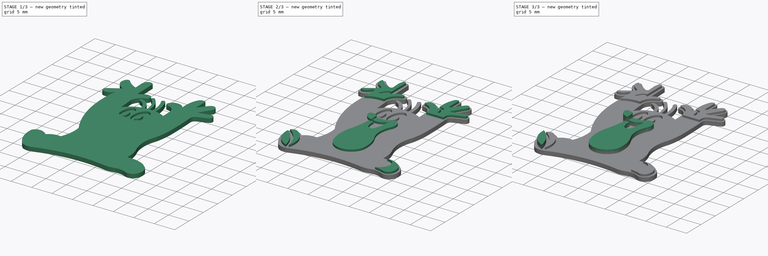
[diagram: build sequence overview — one tinted view per stage of 3, left to right]
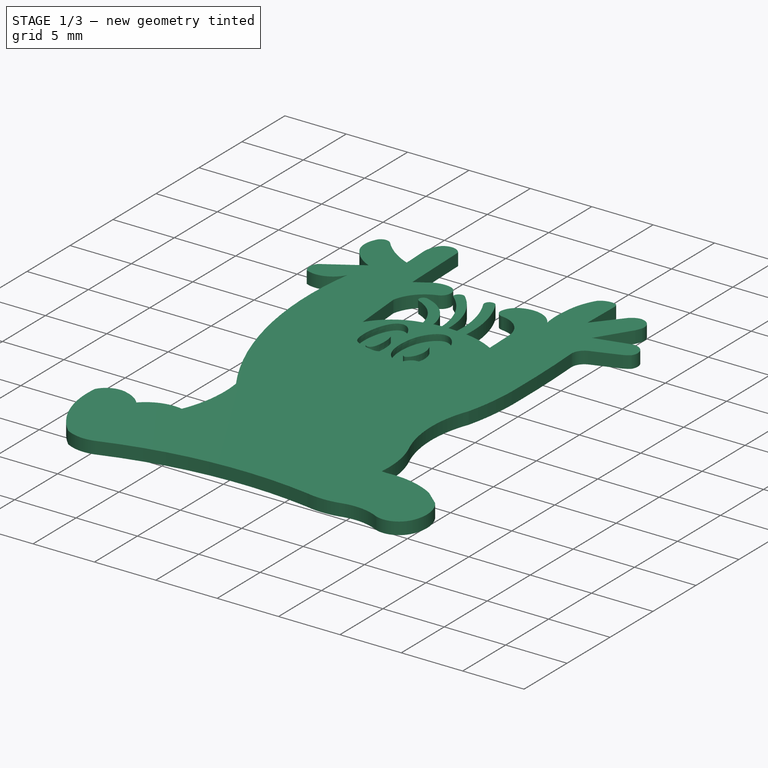
[diagram: stage 1 of 3 — iso view after this stage's code; geometry added in this stage tinted green]
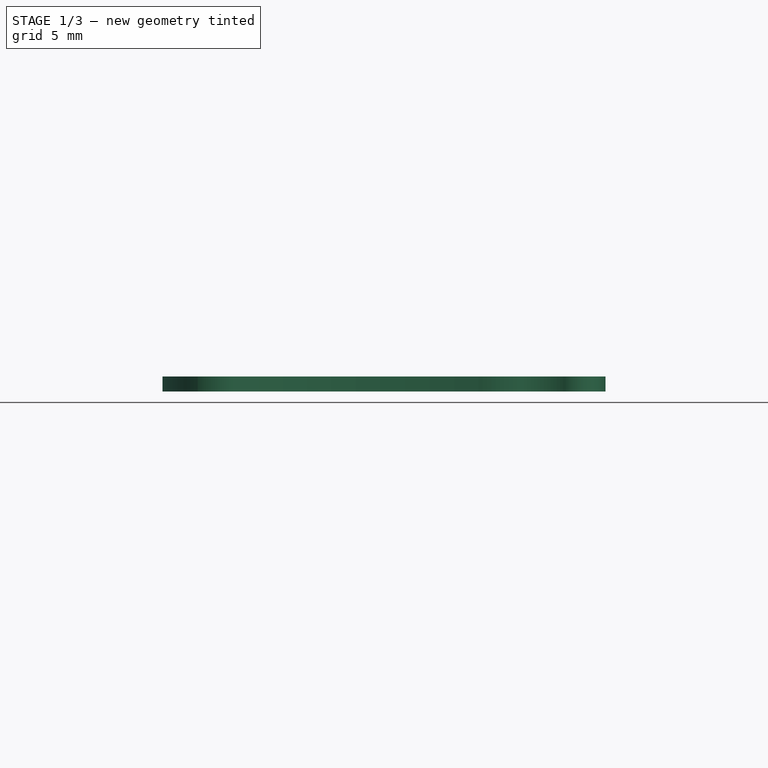
[diagram: stage 1 of 3 — front view after this stage's code; geometry added in this stage tinted green]
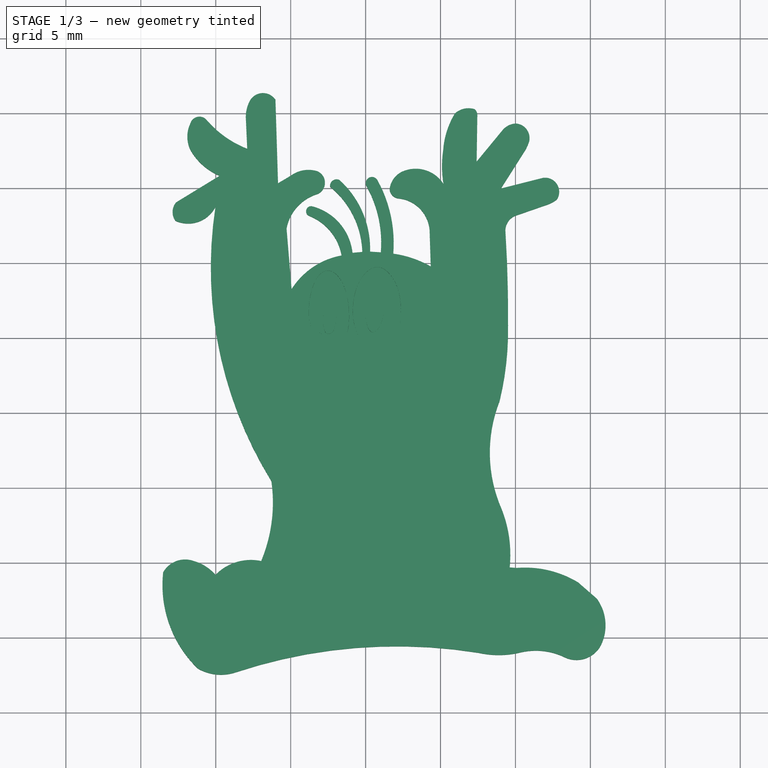
[diagram: stage 1 of 3 — top view after this stage's code; geometry added in this stage tinted green]
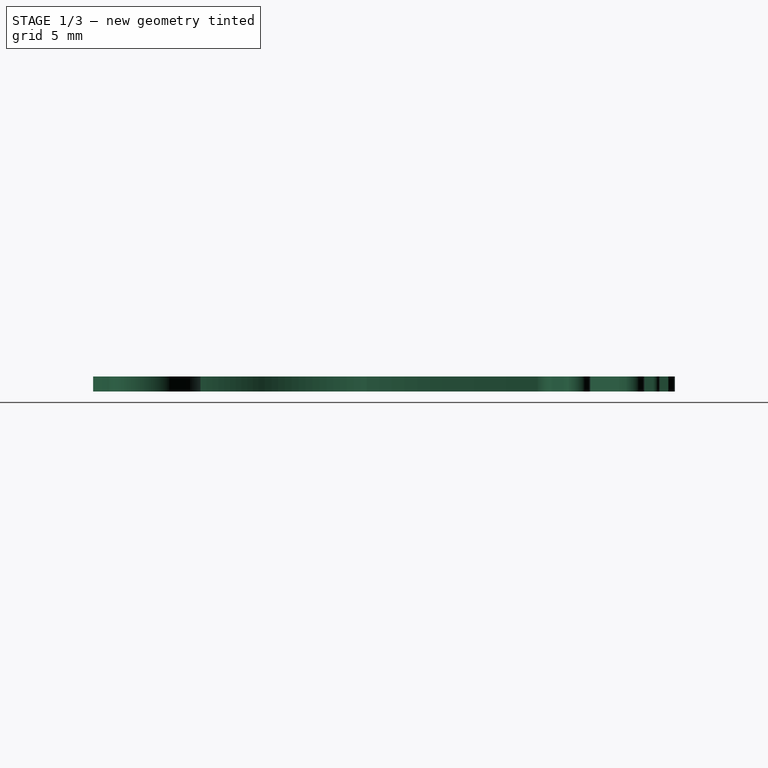
[diagram: stage 1 of 3 — right view after this stage's code; geometry added in this stage tinted green]
FCSTD DOCUMENT  (FreeCAD 0.19R24267 (Git))
Label: krtko
License: All rights reserved
LicenseURL: http://en.wikipedia.org/wiki/All_rights_reserved
objects: Sketcher::SketchObject×5, PartDesign::Pad×4, Image::ImagePlane×1, PartDesign::Pocket×1, PartDesign::Body×1
note: 16 computed .brp shape members not serialized (recipe doc carries the construction recipe); baked Part::Feature solids carry a one-line shape summary decoded from their .brp

FEATURE [Image::ImagePlane] ImagePlane
  Placement = pos=(0,0,-0.1) rot=(0,0,1;0rad)
  XSize = 38.2857
  YSize = 47.6766
FEATURE [Sketcher::SketchObject] Sketch  label="layer 0 - white"
  FullyConstrained = false
  sketch-geometry (68):
    g0: ArcOfCircle CenterX=10.6072 CenterY=17.1552 CenterZ=0 NormalX=0 NormalY=0 NormalZ=1 AngleXU=0 Radius=5.4442 StartAngle=2.59264 EndAngle=3.07053
    g1: ArcOfCircle CenterX=6.8665 CenterY=18.9866 CenterZ=0 NormalX=0 NormalY=0 NormalZ=1 AngleXU=0 Radius=1.35472 StartAngle=1.27396 EndAngle=2.30096
    g2: ArcOfCircle CenterX=6.99056 CenterY=19.904 CenterZ=0 NormalX=0 NormalY=0 NormalZ=1 AngleXU=0 Radius=0.465919 StartAngle=3.88017e-05 EndAngle=0.946886
    g3: ArcOfCircle CenterX=10.0908 CenterY=18.0751 CenterZ=0 NormalX=0 NormalY=0 NormalZ=1 AngleXU=0 Radius=1.24624 StartAngle=1.63459 EndAngle=2.40712
    g4: ArcOfCircle CenterX=9.96922 CenterY=18.3486 CenterZ=0 NormalX=0 NormalY=0 NormalZ=1 AngleXU=0 Radius=0.971037 StartAngle=6.04727 EndAngle=7.81059
    g5: ArcOfCircle CenterX=6.53954 CenterY=19.6363 CenterZ=0 NormalX=0 NormalY=0 NormalZ=1 AngleXU=0 Radius=4.62864 StartAngle=5.83424 EndAngle=5.94982
    g6: ArcOfCircle CenterX=11.9806 CenterY=14.7633 CenterZ=0 NormalX=0 NormalY=0 NormalZ=1 AngleXU=0 Radius=0.938778 StartAngle=5.71173 EndAngle=8.03064
    g7: ArcOfCircle CenterX=11.4783 CenterY=15.8434 CenterZ=0 NormalX=0 NormalY=0 NormalZ=1 AngleXU=0 Radius=2.04706 StartAngle=5.02811 EndAngle=5.39536
    g8: ArcOfCircle CenterX=3.34371 CenterY=14.109 CenterZ=0 NormalX=0 NormalY=0 NormalZ=1 AngleXU=0 Radius=2.19407 StartAngle=0.564475 EndAngle=2.01972
    g9: ArcOfCircle CenterX=3.07683 CenterY=14.7675 CenterZ=0 NormalX=0 NormalY=0 NormalZ=1 AngleXU=0 Radius=1.48572 StartAngle=2.05024 EndAngle=3.02703
    g10: ArcOfCircle CenterX=2.26761 CenterY=14.9822 CenterZ=0 NormalX=0 NormalY=0 NormalZ=1 AngleXU=0 Radius=0.66826 StartAngle=3.20876 EndAngle=4.5939
    g11: ArcOfCircle CenterX=1.97248 CenterY=12.024 CenterZ=0 NormalX=0 NormalY=0 NormalZ=1 AngleXU=0 Radius=2.30481 StartAngle=0.0851114 EndAngle=1.47688
    g12: ArcOfCircle CenterX=10.3901 CenterY=12.1742 CenterZ=0 NormalX=0 NormalY=0 NormalZ=1 AngleXU=0 Radius=1.06223 StartAngle=1.89339 EndAngle=3.1243
    g13: ArcOfCircle CenterX=-3.5424 CenterY=15.3716 CenterZ=0 NormalX=0 NormalY=0 NormalZ=1 AngleXU=0 Radius=0.828256 StartAngle=5.13304 EndAngle=7.45988
    g14: ArcOfCircle CenterX=-3.81605 CenterY=14.2406 CenterZ=0 NormalX=0 NormalY=0 NormalZ=1 AngleXU=0 Radius=1.98595 StartAngle=1.26827 EndAngle=2.2159
    g15: ArcOfCircle CenterX=-2.34806 CenterY=11.761 CenterZ=0 NormalX=0 NormalY=0 NormalZ=1 AngleXU=0 Radius=2.98017 StartAngle=1.86217 EndAngle=2.95426
    g16: ArcOfCircle CenterX=-6.85075 CenterY=20.348 CenterZ=0 NormalX=0 NormalY=0 NormalZ=1 AngleXU=0 Radius=1.00445 StartAngle=0.589625 EndAngle=2.49631
    g17: ArcOfCircle CenterX=-5.7675 CenterY=19.7664 CenterZ=0 NormalX=0 NormalY=0 NormalZ=1 AngleXU=0 Radius=2.22755 StartAngle=2.58027 EndAngle=3.22533
    g18: ArcOfCircle CenterX=-11.089 CenterY=19.1462 CenterZ=0 NormalX=0 NormalY=0 NormalZ=1 AngleXU=0 Radius=0.632376 StartAngle=0.708276 EndAngle=2.87863
    g19: ArcOfCircle CenterX=-9.89667 CenterY=18.445 CenterZ=0 NormalX=0 NormalY=0 NormalZ=1 AngleXU=0 Radius=2 StartAngle=2.694 EndAngle=3.64935
    g20: ArcOfCircle CenterX=-8.1701 CenterY=19.5661 CenterZ=0 NormalX=0 NormalY=0 NormalZ=1 AngleXU=0 Radius=4.05624 StartAngle=3.6839 EndAngle=4.31335
    g21: ArcOfCircle CenterX=-11.8948 CenterY=13.4154 CenterZ=0 NormalX=0 NormalY=0 NormalZ=1 AngleXU=0 Radius=0.985641 StartAngle=2.42483 EndAngle=3.78465
    g22: ArcOfCircle CenterX=-11.8391 CenterY=14.6853 CenterZ=0 NormalX=0 NormalY=0 NormalZ=1 AngleXU=0 Radius=2.04367 StartAngle=4.28638 EndAngle=5.80792
    g23: ArcOfCircle CenterX=16.7196 CenterY=9.68015 CenterZ=0 NormalX=0 NormalY=0 NormalZ=1 AngleXU=0 Radius=27.0495 StartAngle=2.99055 EndAngle=3.69553
    g24: ArcOfCircle CenterX=-0.714948 CenterY=5.5906 CenterZ=0 NormalX=0 NormalY=0 NormalZ=1 AngleXU=0 Radius=5.00121 StartAngle=1.74941 EndAngle=2.57642
    g25: ArcOfCircle CenterX=-5.05356 CenterY=9.89235 CenterZ=0 NormalX=0 NormalY=0 NormalZ=1 AngleXU=0 Radius=3.5053 StartAngle=0.177778 EndAngle=1.19776
    g26: ArcOfCircle CenterX=-4.46395 CenterY=10.2953 CenterZ=0 NormalX=0 NormalY=0 NormalZ=1 AngleXU=0 Radius=3.61158 StartAngle=0.108856 EndAngle=1.32372
    g27: ArcOfCircle CenterX=-6.03903 CenterY=10.5795 CenterZ=0 NormalX=0 NormalY=0 NormalZ=1 AngleXU=0 Radius=5.82019 StartAngle=0.0291932 EndAngle=0.888746
    g28: ArcOfCircle CenterX=-5.91147 CenterY=10.9401 CenterZ=0 NormalX=0 NormalY=0 NormalZ=1 AngleXU=0 Radius=6.21567 StartAngle=6.25569 EndAngle=7.11768
    g29: ArcOfCircle CenterX=-6.72192 CenterY=11.3655 CenterZ=0 NormalX=0 NormalY=0 NormalZ=1 AngleXU=0 Radius=7.7634 StartAngle=6.20002 EndAngle=6.78671
    g30: ArcOfCircle CenterX=-6.82003 CenterY=11.3321 CenterZ=0 NormalX=0 NormalY=0 NormalZ=1 AngleXU=0 Radius=8.69554 StartAngle=6.20282 EndAngle=6.78535
    g31: ArcOfCircle CenterX=0.85051 CenterY=3.59575 CenterZ=0 NormalX=0 NormalY=0 NormalZ=1 AngleXU=0 Radius=7.10858 StartAngle=1.05669 EndAngle=1.43009
    g32: ArcOfCircle CenterX=-3.63527 CenterY=13.4638 CenterZ=0 NormalX=0 NormalY=0 NormalZ=1 AngleXU=0 Radius=0.337912 StartAngle=1.40844 EndAngle=4.28262
    g33: ArcOfCircle CenterX=-1.94002 CenterY=15.1611 CenterZ=0 NormalX=0 NormalY=0 NormalZ=1 AngleXU=0 Radius=0.434695 StartAngle=1.08566 EndAngle=3.28805
    g34: ArcOfCircle CenterX=0.426659 CenterY=15.3382 CenterZ=0 NormalX=0 NormalY=0 NormalZ=1 AngleXU=0 Radius=0.415944 StartAngle=0.445591 EndAngle=3.71808
    g35: ArcOfCircle CenterX=-10.4904 CenterY=5.52616 CenterZ=0 NormalX=0 NormalY=0 NormalZ=1 AngleXU=0 Radius=20 StartAngle=6.04412 EndAngle=6.29937
    g36: ArcOfCircle CenterX=17.6866 CenterY=-2.64768 CenterZ=0 NormalX=0 NormalY=0 NormalZ=1 AngleXU=0 Radius=9.39727 StartAngle=2.76704 EndAngle=3.55647
    g37: ArcOfCircle CenterX=1.4055 CenterY=-9.45449 CenterZ=0 NormalX=0 NormalY=0 NormalZ=1 AngleXU=0 Radius=8.253 StartAngle=6.17967 EndAngle=6.65768
    g38: ArcOfCircle CenterX=10.6386 CenterY=-17.1792 CenterZ=0 NormalX=0 NormalY=0 NormalZ=1 AngleXU=0 Radius=6.86008 StartAngle=1.02909 EndAngle=1.65493
    g39: ArcOfCircle CenterX=14.0757 CenterY=-14.6495 CenterZ=0 NormalX=0 NormalY=0 NormalZ=1 AngleXU=0 Radius=1.83559 StartAngle=4.31252 EndAngle=5.88406
    g40: ArcOfCircle CenterX=11.3591 CenterY=-20.2962 CenterZ=0 NormalX=0 NormalY=0 NormalZ=1 AngleXU=0 Radius=4.4336 StartAngle=1.1023 EndAngle=1.79515
    g41: ArcOfCircle CenterX=8.88558 CenterY=-10.018 CenterZ=0 NormalX=0 NormalY=0 NormalZ=1 AngleXU=0 Radius=6.13854 StartAngle=4.49245 EndAngle=4.95709
    g42: ArcOfCircle CenterX=2.0903 CenterY=-49.7213 CenterZ=0 NormalX=0 NormalY=0 NormalZ=1 AngleXU=0 Radius=34.1513 StartAngle=1.41035 EndAngle=1.89195
    g43: ArcOfCircle CenterX=-9.65231 CenterY=-14.3993 CenterZ=0 NormalX=0 NormalY=0 NormalZ=1 AngleXU=0 Radius=3.07151 StartAngle=4.1832 EndAngle=5.03105
    g44: ArcOfCircle CenterX=-5.78859 CenterY=-11.4795 CenterZ=0 NormalX=0 NormalY=0 NormalZ=1 AngleXU=0 Radius=7.76869 StartAngle=3.03295 EndAngle=3.94127
    g45: ArcOfCircle CenterX=-12.0439 CenterY=-11.4613 CenterZ=0 NormalX=0 NormalY=0 NormalZ=1 AngleXU=0 Radius=1.6832 StartAngle=1.2179 EndAngle=2.62992
    g46: ArcOfCircle CenterX=-12.2834 CenterY=-12.7644 CenterZ=0 NormalX=0 NormalY=0 NormalZ=1 AngleXU=0 Radius=2.99735 StartAngle=0.713592 EndAngle=1.29324
    g47: ArcOfCircle CenterX=-7.65812 CenterY=-13.1057 CenterZ=0 NormalX=0 NormalY=0 NormalZ=1 AngleXU=0 Radius=3.29711 StartAngle=1.35983 EndAngle=2.36821
    g48: ArcOfCircle CenterX=-5.41693 CenterY=24.0046 CenterZ=0 NormalX=0 NormalY=0 NormalZ=1 AngleXU=0 Radius=6.83595 StartAngle=3.84987 EndAngle=4.34059
    g49: LineSegment StartX=-7.9004 StartY=17.6357 StartZ=0 EndX=-7.98724 EndY=19.58 EndZ=0
    g50: LineSegment StartX=-6.01591 StartY=20.9065 StartZ=0 EndX=-5.84423 EndY=15.334 EndZ=0
    g51: LineSegment StartX=-5.84423 StartY=15.334 StartZ=0 EndX=-5.01017 EndY=15.8275 EndZ=0
    g52: LineSegment StartX=-12.6379 StartY=14.0629 StartZ=0 EndX=-9.7461 EndY=15.8285 EndZ=0
    g53: LineSegment StartX=-5.27609 StartY=12.316 StartZ=0 EndX=-4.93844 EndY=8.26908 EndZ=0
    g54: LineSegment StartX=-0.873741 StartY=10.6877 StartZ=0 EndX=-0.221315 EndY=10.7494 EndZ=0
    g55: LineSegment StartX=0.301854 StartY=10.7692 StartZ=0 EndX=1.01464 EndY=10.7206 EndZ=0
    g56: LineSegment StartX=4.26895 StartY=12.2199 StartZ=0 EndX=4.34618 EndY=9.78543 EndZ=0
    g57: ArcOfCircle CenterX=12.3471 CenterY=16.4778 CenterZ=0 NormalX=0 NormalY=0 NormalZ=1 AngleXU=0 Radius=7.24882 StartAngle=2.99428 EndAngle=3.3072
    g58: LineSegment StartX=7.45648 StartY=19.904 StartZ=0 EndX=7.40991 EndY=16.779 EndZ=0
    g59: LineSegment StartX=7.40991 StartY=16.779 StartZ=0 EndX=9.16586 EndY=18.9103 EndZ=0
    g60: LineSegment StartX=10.7095 StartY=17.6274 StartZ=0 EndX=9.03181 EndY=14.9829 EndZ=0
    g61: LineSegment StartX=9.03181 StartY=14.9829 StartZ=0 EndX=11.8156 EndY=15.6874 EndZ=0
    g62: LineSegment StartX=10.0533 StartY=13.1816 StartZ=0 EndX=12.1139 EndY=13.8976 EndZ=0
    g63: ArcOfCircle CenterX=-80.6137 CenterY=6.48156 CenterZ=0 NormalX=0 NormalY=0 NormalZ=1 AngleXU=0 Radius=90.1229 StartAngle=6.27618 EndAngle=6.3466
    g64: LineSegment StartX=9.61432 StartY=-10.3073 StartZ=0 EndX=10.0621 EndY=-10.3434 EndZ=0
    g65: LineSegment StartX=14.1757 StartY=-11.3013 StartZ=0 EndX=15.4296 EndY=-12.3908 EndZ=0
    g66: ArcOfCircle CenterX=12.9974 CenterY=-14.172 CenterZ=0 NormalX=0 NormalY=0 NormalZ=1 AngleXU=0 Radius=3.01473 StartAngle=5.87712 EndAngle=6.9153
    g67: ArcOfCircle CenterX=-16.3435 CenterY=-5.97104 CenterZ=0 NormalX=0 NormalY=0 NormalZ=1 AngleXU=0 Radius=10.1587 StartAngle=5.88802 EndAngle=6.42363
  constraints (68):
    c: Coincident(g1,g0)
    c: Coincident(g2,g1)
    c: Coincident(g4,g3)
    c: Coincident(g5,g4)
    c: Coincident(g7,g6)
    c: Coincident(g9,g8)
    c: Coincident(g10,g9)
    c: Coincident(g11,g10)
    c: Coincident(g14,g13)
    c: Coincident(g15,g13)
    c: Coincident(g17,g16)
    c: Coincident(g19,g18)
    c: Coincident(g20,g19)
    c: Coincident(g22,g21)
    c: Coincident(g23,g22)
    c: Coincident(g25,g24)
    c: Coincident(g31,g30)
    c: Coincident(g32,g25)
    c: Coincident(g32,g26)
    c: Coincident(g33,g27)
    c: Coincident(g33,g28)
    c: Coincident(g34,g29)
    c: Coincident(g34,g30)
    c: Coincident(g36,g35)
    c: Coincident(g37,g36)
    c: Coincident(g40,g39)
    c: Coincident(g41,g40)
    c: Coincident(g42,g41)
    c: Coincident(g43,g42)
    c: Coincident(g44,g43)
    c: Coincident(g45,g44)
    c: Coincident(g46,g45)
    c: Coincident(g47,g46)
    c: Coincident(g49,g48)
    c: Coincident(g49,g17)
    c: Coincident(g50,g16)
    c: Coincident(g51,g14)
    c: Coincident(g52,g21)
    c: Coincident(g52,g20)
    c: Coincident(g53,g15)
    c: Coincident(g53,g24)
    c: Coincident(g54,g26)
    c: Coincident(g54,g27)
    c: Coincident(g55,g28)
    c: Coincident(g55,g29)
    c: Coincident(g56,g11)
    c: Coincident(g56,g31)
    c: Coincident(g57,g0)
    c: Coincident(g57,g8)
    c: Coincident(g58,g2)
    c: Coincident(g59,g58)
    c: Coincident(g59,g3)
    c: Coincident(g60,g5)
    c: Coincident(g61,g60)
    c: Coincident(g61,g6)
    c: Coincident(g62,g12)
    c: Coincident(g62,g7)
    c: Coincident(g63,g12)
    c: Coincident(g63,g35)
    c: Coincident(g64,g37)
    c: Coincident(g64,g38)
    c: Coincident(g65,g38)
    c: Coincident(g66,g65)
    c: Coincident(g66,g39)
    c: Coincident(g67,g47)
    c: Coincident(g67,g23)
    c: Coincident(g50,g51)
    c: Tangent(g48,g18) = 1.5708
FEATURE [Sketcher::SketchObject] Sketch001  label="layer 1 - black"
  FullyConstrained = false
  Placement = pos=(0,0,0.5) rot=(0,0,1;0rad)
  sketch-geometry (63):
    g0-g7: Circle x8 (B-spline internal-alignment scaffolding for g8; pole/knot coordinates omitted)
    g8: BSplineCurve PolesCount=9 KnotsCount=10 Degree=3 IsPeriodic=1
    g9-g18: GeomPoint x10 (B-spline internal-alignment scaffolding for g8; pole/knot coordinates omitted)
    g19-g22: Circle x4 (B-spline internal-alignment scaffolding for g23; pole/knot coordinates omitted)
    g23: BSplineCurve PolesCount=4 KnotsCount=5 Degree=3 IsPeriodic=1
    g24-g28: GeomPoint x5 (B-spline internal-alignment scaffolding for g23; pole/knot coordinates omitted)
    g29-g34: Circle x6 (B-spline internal-alignment scaffolding for g35; pole/knot coordinates omitted)
    g35: BSplineCurve PolesCount=12 KnotsCount=7 Degree=4 IsPeriodic=1
    g36-g42: GeomPoint x7 (B-spline internal-alignment scaffolding for g35; pole/knot coordinates omitted)
    g43-g48: Circle x6 (B-spline internal-alignment scaffolding for g35; pole/knot coordinates omitted)
    g49-g52: Circle x4 (B-spline internal-alignment scaffolding for g53; pole/knot coordinates omitted)
    g53: BSplineCurve PolesCount=8 KnotsCount=5 Degree=4 IsPeriodic=1
    g54-g58: GeomPoint x5 (B-spline internal-alignment scaffolding for g53; pole/knot coordinates omitted)
    g59-g62: Circle x4 (B-spline internal-alignment scaffolding for g53; pole/knot coordinates omitted)
  constraints (37):
    c: PointOnObject(g4,g3)
    c: InternalAlignment(g0-g7 -> g8) x8
    c: InternalAlignment(g9-g18 -> g8) x10
    c: Weight(g19) = 1
    c: Equal(g19,g20)
    c: Equal(g19,g21)
    c: Equal(g19,g22)
    c: InternalAlignment(g19-g22 -> g23) x4
    c: InternalAlignment(g24-g28 -> g23) x5
    c: Weight(g29) = 1
    c: Equal(g29, g30-g34) x5
    c: InternalAlignment(g29-g34 -> g35) x6
    c: InternalAlignment(g36-g43 -> g35) x8
    c: Equal(g43,g29)
    c: InternalAlignment(g44,g35)
    c: Equal(g44,g29)
    c: InternalAlignment(g45,g35)
    c: Equal(g45,g29)
    c: InternalAlignment(g46,g35)
    c: Equal(g46,g29)
    c: InternalAlignment(g47,g35)
    c: Equal(g47,g29)
    c: InternalAlignment(g48,g35)
    c: Equal(g48,g29)
    c: Weight(g49) = 1
    c: Equal(g49,g50)
    c: Equal(g49,g51)
    c: Equal(g49,g52)
    c: InternalAlignment(g49-g52 -> g53) x4
    c: InternalAlignment(g54-g59 -> g53) x6
    c: Equal(g59,g49)
    c: InternalAlignment(g60,g53)
    c: Equal(g60,g49)
    c: InternalAlignment(g61,g53)
    c: Equal(g61,g49)
    c: InternalAlignment(g62,g53)
    c: Equal(g62,g49)
FEATURE [PartDesign::Pad] Pad
  Direction = (1,1,1)
  Length = 1
  Length2 = 100
  Midplane = true
  Profile = -> Sketch
  Refine = true
  Type = 0
FEATURE [PartDesign::Pocket] Pocket
  BaseFeature = -> Pad
  Length = 0.5
  Length2 = 100
  Profile = -> Sketch001
  Refine = true
  Type = 0
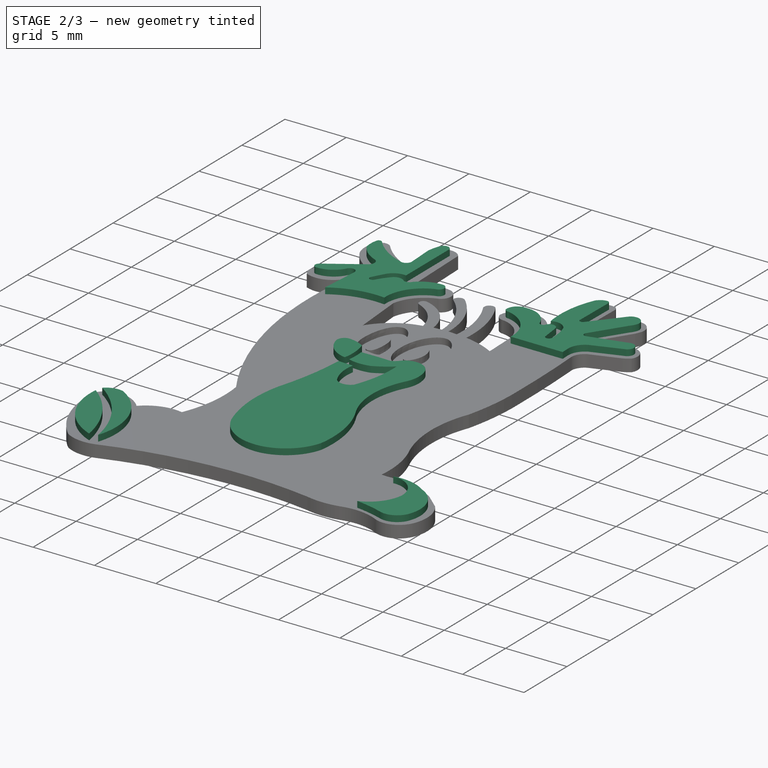
[diagram: stage 2 of 3 — iso view after this stage's code; geometry added in this stage tinted green]
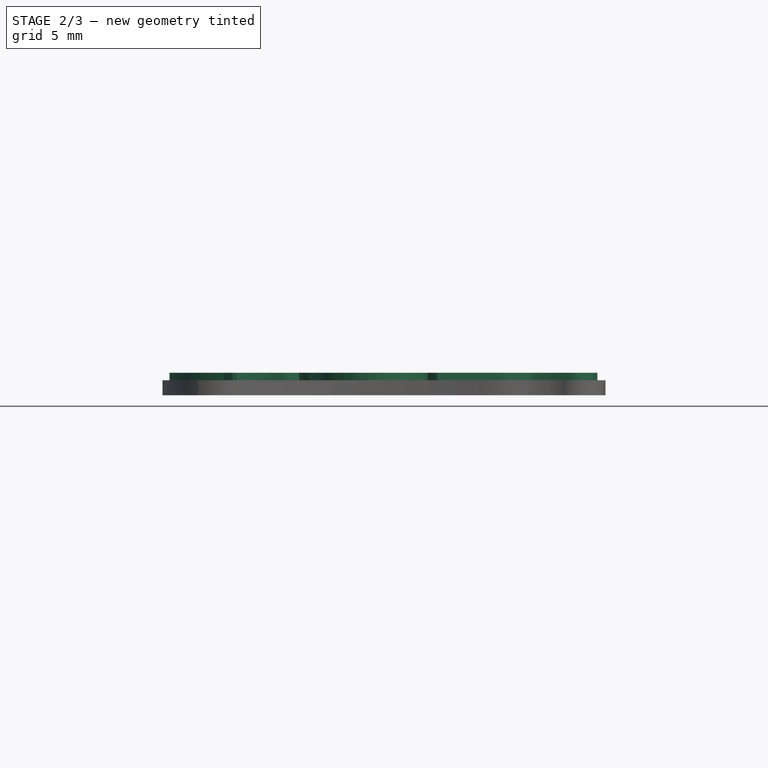
[diagram: stage 2 of 3 — front view after this stage's code; geometry added in this stage tinted green]
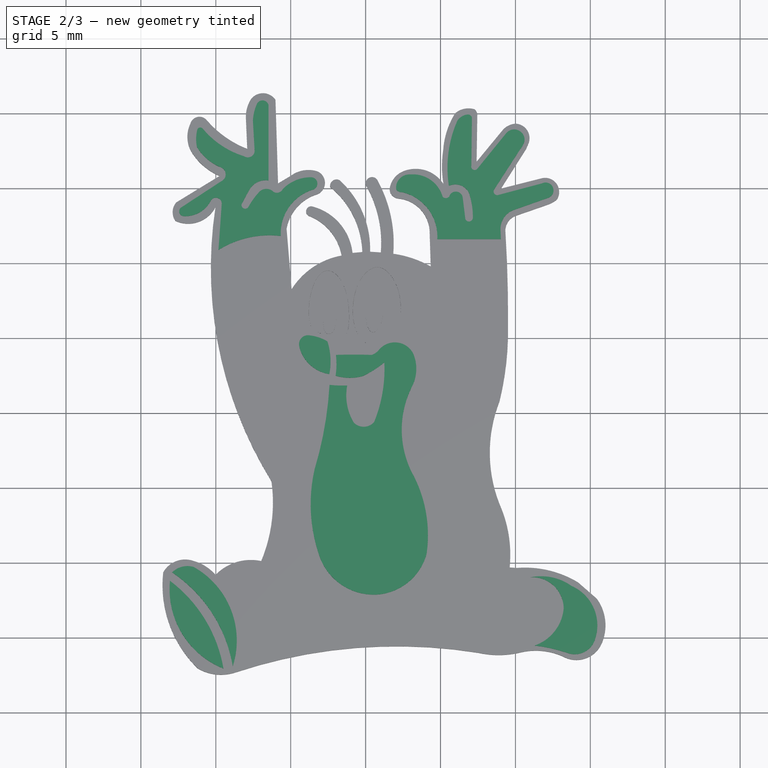
[diagram: stage 2 of 3 — top view after this stage's code; geometry added in this stage tinted green]
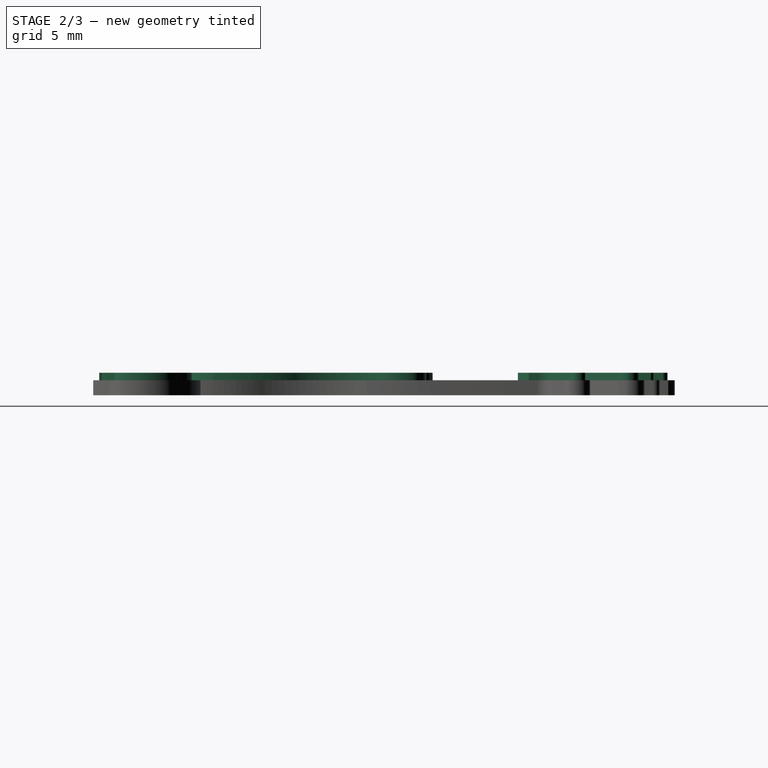
[diagram: stage 2 of 3 — right view after this stage's code; geometry added in this stage tinted green]
FEATURE [Sketcher::SketchObject] Sketch002  label="layer 2 - beige"
  FullyConstrained = false
  Placement = pos=(0,0,0.5) rot=(0,0,1;0rad)
  sketch-geometry (151):
    g0: ArcOfCircle CenterX=10.6072 CenterY=17.1552 CenterZ=0 NormalX=0 NormalY=0 NormalZ=1 AngleXU=0 Radius=5.4442 StartAngle=2.59264 EndAngle=3.07053
    g1: ArcOfCircle CenterX=6.8665 CenterY=18.9866 CenterZ=0 NormalX=0 NormalY=0 NormalZ=1 AngleXU=0 Radius=1.35472 StartAngle=1.27396 EndAngle=2.30096
    g2: ArcOfCircle CenterX=6.99056 CenterY=19.904 CenterZ=0 NormalX=0 NormalY=0 NormalZ=1 AngleXU=0 Radius=0.465919 StartAngle=3.88017e-05 EndAngle=0.946886
    g3: ArcOfCircle CenterX=10.0908 CenterY=18.0751 CenterZ=0 NormalX=0 NormalY=0 NormalZ=1 AngleXU=0 Radius=1.24624 StartAngle=1.63459 EndAngle=2.40712
    g4: ArcOfCircle CenterX=9.96922 CenterY=18.3486 CenterZ=0 NormalX=0 NormalY=0 NormalZ=1 AngleXU=0 Radius=0.971037 StartAngle=6.04727 EndAngle=7.81059
    g5: ArcOfCircle CenterX=6.53954 CenterY=19.6363 CenterZ=0 NormalX=0 NormalY=0 NormalZ=1 AngleXU=0 Radius=4.62864 StartAngle=5.83424 EndAngle=5.94982
    g6: ArcOfCircle CenterX=11.9806 CenterY=14.7633 CenterZ=0 NormalX=0 NormalY=0 NormalZ=1 AngleXU=0 Radius=0.938778 StartAngle=5.71173 EndAngle=8.03064
    g7: ArcOfCircle CenterX=11.4783 CenterY=15.8434 CenterZ=0 NormalX=0 NormalY=0 NormalZ=1 AngleXU=0 Radius=2.04706 StartAngle=5.02811 EndAngle=5.39536
    g8: ArcOfCircle CenterX=3.34371 CenterY=14.109 CenterZ=0 NormalX=0 NormalY=0 NormalZ=1 AngleXU=0 Radius=2.19407 StartAngle=0.564475 EndAngle=2.01972
    g9: ArcOfCircle CenterX=3.07683 CenterY=14.7675 CenterZ=0 NormalX=0 NormalY=0 NormalZ=1 AngleXU=0 Radius=1.48572 StartAngle=2.05024 EndAngle=3.02703
    g10: ArcOfCircle CenterX=2.26761 CenterY=14.9822 CenterZ=0 NormalX=0 NormalY=0 NormalZ=1 AngleXU=0 Radius=0.66826 StartAngle=3.20876 EndAngle=4.5939
    g11: ArcOfCircle CenterX=1.97248 CenterY=12.024 CenterZ=0 NormalX=0 NormalY=0 NormalZ=1 AngleXU=0 Radius=2.30481 StartAngle=0.0851114 EndAngle=1.47688
    g12: ArcOfCircle CenterX=10.3901 CenterY=12.1742 CenterZ=0 NormalX=0 NormalY=0 NormalZ=1 AngleXU=0 Radius=1.06223 StartAngle=1.89339 EndAngle=3.1243
    g13: ArcOfCircle CenterX=-3.5424 CenterY=15.3716 CenterZ=0 NormalX=0 NormalY=0 NormalZ=1 AngleXU=0 Radius=0.828256 StartAngle=5.13304 EndAngle=7.45988
    g14: ArcOfCircle CenterX=-3.81605 CenterY=14.2406 CenterZ=0 NormalX=0 NormalY=0 NormalZ=1 AngleXU=0 Radius=1.98595 StartAngle=1.26827 EndAngle=2.2159
    g15: ArcOfCircle CenterX=-2.34806 CenterY=11.761 CenterZ=0 NormalX=0 NormalY=0 NormalZ=1 AngleXU=0 Radius=2.98017 StartAngle=1.86217 EndAngle=2.95426
    g16: ArcOfCircle CenterX=-6.85075 CenterY=20.348 CenterZ=0 NormalX=0 NormalY=0 NormalZ=1 AngleXU=0 Radius=1.00445 StartAngle=0.589625 EndAngle=2.49631
    g17: ArcOfCircle CenterX=-5.7675 CenterY=19.7664 CenterZ=0 NormalX=0 NormalY=0 NormalZ=1 AngleXU=0 Radius=2.22755 StartAngle=2.58027 EndAngle=3.22533
    g18: ArcOfCircle CenterX=-11.089 CenterY=19.1462 CenterZ=0 NormalX=0 NormalY=0 NormalZ=1 AngleXU=0 Radius=0.632376 StartAngle=0.708276 EndAngle=2.87863
    g19: ArcOfCircle CenterX=-9.89667 CenterY=18.445 CenterZ=0 NormalX=0 NormalY=0 NormalZ=1 AngleXU=0 Radius=2 StartAngle=2.694 EndAngle=3.64935
    g20: ArcOfCircle CenterX=-8.1701 CenterY=19.5661 CenterZ=0 NormalX=0 NormalY=0 NormalZ=1 AngleXU=0 Radius=4.05624 StartAngle=3.6839 EndAngle=4.31335
    g21: ArcOfCircle CenterX=-11.8948 CenterY=13.4154 CenterZ=0 NormalX=0 NormalY=0 NormalZ=1 AngleXU=0 Radius=0.985641 StartAngle=2.42483 EndAngle=3.78465
    g22: ArcOfCircle CenterX=-11.8391 CenterY=14.6853 CenterZ=0 NormalX=0 NormalY=0 NormalZ=1 AngleXU=0 Radius=2.04367 StartAngle=4.28638 EndAngle=5.80792
    g23: ArcOfCircle CenterX=16.7196 CenterY=9.68015 CenterZ=0 NormalX=0 NormalY=0 NormalZ=1 AngleXU=0 Radius=27.0495 StartAngle=2.99055 EndAngle=3.69553
    g24: ArcOfCircle CenterX=-0.714948 CenterY=5.5906 CenterZ=0 NormalX=0 NormalY=0 NormalZ=1 AngleXU=0 Radius=5.00121 StartAngle=1.74941 EndAngle=2.57642
    g25: ArcOfCircle CenterX=-5.05356 CenterY=9.89235 CenterZ=0 NormalX=0 NormalY=0 NormalZ=1 AngleXU=0 Radius=3.5053 StartAngle=0.177778 EndAngle=1.19776
    g26: ArcOfCircle CenterX=-4.46395 CenterY=10.2953 CenterZ=0 NormalX=0 NormalY=0 NormalZ=1 AngleXU=0 Radius=3.61158 StartAngle=0.108856 EndAngle=1.32372
    g27: ArcOfCircle CenterX=-6.03903 CenterY=10.5795 CenterZ=0 NormalX=0 NormalY=0 NormalZ=1 AngleXU=0 Radius=5.82019 StartAngle=0.0291932 EndAngle=0.888746
    g28: ArcOfCircle CenterX=-5.91147 CenterY=10.9401 CenterZ=0 NormalX=0 NormalY=0 NormalZ=1 AngleXU=0 Radius=6.21567 StartAngle=6.25569 EndAngle=7.11768
    g29: ArcOfCircle CenterX=-6.72192 CenterY=11.3655 CenterZ=0 NormalX=0 NormalY=0 NormalZ=1 AngleXU=0 Radius=7.7634 StartAngle=6.20002 EndAngle=6.78671
    g30: ArcOfCircle CenterX=-6.82003 CenterY=11.3321 CenterZ=0 NormalX=0 NormalY=0 NormalZ=1 AngleXU=0 Radius=8.69554 StartAngle=6.20282 EndAngle=6.78535
    g31: ArcOfCircle CenterX=0.85051 CenterY=3.59575 CenterZ=0 NormalX=0 NormalY=0 NormalZ=1 AngleXU=0 Radius=7.10858 StartAngle=1.05669 EndAngle=1.43009
    g32: ArcOfCircle CenterX=-3.63527 CenterY=13.4638 CenterZ=0 NormalX=0 NormalY=0 NormalZ=1 AngleXU=0 Radius=0.337912 StartAngle=1.40844 EndAngle=4.28262
    g33: ArcOfCircle CenterX=-1.94002 CenterY=15.1611 CenterZ=0 NormalX=0 NormalY=0 NormalZ=1 AngleXU=0 Radius=0.434695 StartAngle=1.08566 EndAngle=3.28805
    g34: ArcOfCircle CenterX=0.426659 CenterY=15.3382 CenterZ=0 NormalX=0 NormalY=0 NormalZ=1 AngleXU=0 Radius=0.415944 StartAngle=0.445591 EndAngle=3.71808
    g35: ArcOfCircle CenterX=-10.4904 CenterY=5.52616 CenterZ=0 NormalX=0 NormalY=0 NormalZ=1 AngleXU=0 Radius=20 StartAngle=6.04412 EndAngle=6.29937
    g36: ArcOfCircle CenterX=17.6866 CenterY=-2.64768 CenterZ=0 NormalX=0 NormalY=0 NormalZ=1 AngleXU=0 Radius=9.39727 StartAngle=2.76704 EndAngle=3.55647
    g37: ArcOfCircle CenterX=1.4055 CenterY=-9.45449 CenterZ=0 NormalX=0 NormalY=0 NormalZ=1 AngleXU=0 Radius=8.253 StartAngle=6.17967 EndAngle=6.65768
    g38: ArcOfCircle CenterX=10.6386 CenterY=-17.1792 CenterZ=0 NormalX=0 NormalY=0 NormalZ=1 AngleXU=0 Radius=6.86008 StartAngle=1.02909 EndAngle=1.65493
    g39: ArcOfCircle CenterX=14.0757 CenterY=-14.6495 CenterZ=0 NormalX=0 NormalY=0 NormalZ=1 AngleXU=0 Radius=1.83559 StartAngle=4.31252 EndAngle=5.88406
    g40: ArcOfCircle CenterX=11.3591 CenterY=-20.2962 CenterZ=0 NormalX=0 NormalY=0 NormalZ=1 AngleXU=0 Radius=4.4336 StartAngle=1.1023 EndAngle=1.79515
    g41: ArcOfCircle CenterX=8.88558 CenterY=-10.018 CenterZ=0 NormalX=0 NormalY=0 NormalZ=1 AngleXU=0 Radius=6.13854 StartAngle=4.49245 EndAngle=4.95709
    g42: ArcOfCircle CenterX=2.0903 CenterY=-49.7213 CenterZ=0 NormalX=0 NormalY=0 NormalZ=1 AngleXU=0 Radius=34.1513 StartAngle=1.41035 EndAngle=1.89195
    g43: ArcOfCircle CenterX=-9.65231 CenterY=-14.3993 CenterZ=0 NormalX=0 NormalY=0 NormalZ=1 AngleXU=0 Radius=3.07151 StartAngle=4.1832 EndAngle=5.03105
    g44: ArcOfCircle CenterX=-5.78859 CenterY=-11.4795 CenterZ=0 NormalX=0 NormalY=0 NormalZ=1 AngleXU=0 Radius=7.76869 StartAngle=3.03295 EndAngle=3.94127
    g45: ArcOfCircle CenterX=-12.0439 CenterY=-11.4613 CenterZ=0 NormalX=0 NormalY=0 NormalZ=1 AngleXU=0 Radius=1.6832 StartAngle=1.2179 EndAngle=2.62992
    g46: ArcOfCircle CenterX=-12.2834 CenterY=-12.7644 CenterZ=0 NormalX=0 NormalY=0 NormalZ=1 AngleXU=0 Radius=2.99735 StartAngle=0.713592 EndAngle=1.29324
    g47: ArcOfCircle CenterX=-7.65812 CenterY=-13.1057 CenterZ=0 NormalX=0 NormalY=0 NormalZ=1 AngleXU=0 Radius=3.29711 StartAngle=1.35983 EndAngle=2.36821
    g48: ArcOfCircle CenterX=-5.41693 CenterY=24.0046 CenterZ=0 NormalX=0 NormalY=0 NormalZ=1 AngleXU=0 Radius=6.83595 StartAngle=3.84987 EndAngle=4.34059
    g49: LineSegment StartX=-7.9004 StartY=17.6357 StartZ=0 EndX=-7.98724 EndY=19.58 EndZ=0
    g50: LineSegment StartX=-6.01591 StartY=20.9065 StartZ=0 EndX=-5.84423 EndY=15.334 EndZ=0
    g51: LineSegment StartX=-5.84423 StartY=15.334 StartZ=0 EndX=-5.01017 EndY=15.8275 EndZ=0
    g52: LineSegment StartX=-12.6379 StartY=14.0629 StartZ=0 EndX=-9.7461 EndY=15.8285 EndZ=0
    g53: LineSegment StartX=-5.27609 StartY=12.316 StartZ=0 EndX=-4.93844 EndY=8.26908 EndZ=0
    g54: LineSegment StartX=-0.873741 StartY=10.6877 StartZ=0 EndX=-0.221315 EndY=10.7494 EndZ=0
    g55: LineSegment StartX=0.301854 StartY=10.7692 StartZ=0 EndX=1.01464 EndY=10.7206 EndZ=0
    g56: LineSegment StartX=4.26895 StartY=12.2199 StartZ=0 EndX=4.34618 EndY=9.78543 EndZ=0
    g57: ArcOfCircle CenterX=12.3471 CenterY=16.4778 CenterZ=0 NormalX=0 NormalY=0 NormalZ=1 AngleXU=0 Radius=7.24882 StartAngle=2.99428 EndAngle=3.3072
    g58: LineSegment StartX=7.45648 StartY=19.904 StartZ=0 EndX=7.40991 EndY=16.779 EndZ=0
    g59: LineSegment StartX=7.40991 StartY=16.779 StartZ=0 EndX=9.16586 EndY=18.9103 EndZ=0
    g60: LineSegment StartX=10.7095 StartY=17.6274 StartZ=0 EndX=9.03181 EndY=14.9829 EndZ=0
    g61: LineSegment StartX=9.03181 StartY=14.9829 StartZ=0 EndX=11.8156 EndY=15.6874 EndZ=0
    g62: ArcOfCircle CenterX=-80.6137 CenterY=6.48156 CenterZ=0 NormalX=0 NormalY=0 NormalZ=1 AngleXU=0 Radius=90.1229 StartAngle=6.27618 EndAngle=6.3466
    g63: LineSegment StartX=9.61432 StartY=-10.3073 StartZ=0 EndX=10.0621 EndY=-10.3434 EndZ=0
    g64: LineSegment StartX=14.1757 StartY=-11.3013 StartZ=0 EndX=15.4296 EndY=-12.3908 EndZ=0
    g65: ArcOfCircle CenterX=12.9974 CenterY=-14.172 CenterZ=0 NormalX=0 NormalY=0 NormalZ=1 AngleXU=0 Radius=3.01473 StartAngle=5.87712 EndAngle=6.9153
    g66: ArcOfCircle CenterX=-16.3435 CenterY=-5.97104 CenterZ=0 NormalX=0 NormalY=0 NormalZ=1 AngleXU=0 Radius=10.1587 StartAngle=5.88802 EndAngle=6.42363
    g67: ArcOfCircle CenterX=1.76118 CenterY=11.7845 CenterZ=0 NormalX=0 NormalY=0 NormalZ=1 AngleXU=0 Radius=3.0275 StartAngle=6.22245 EndAngle=7.63508
    g68: ArcOfCircle CenterX=2.37728 CenterY=15.1221 CenterZ=0 NormalX=0 NormalY=0 NormalZ=1 AngleXU=0 Radius=0.3846 StartAngle=3.63573 EndAngle=4.82009
    g69: ArcOfCircle CenterX=2.9224 CenterY=15.0327 CenterZ=0 NormalX=0 NormalY=0 NormalZ=1 AngleXU=0 Radius=0.888593 StartAngle=1.50759 EndAngle=3.24646
    g70: ArcOfCircle CenterX=3.15521 CenterY=13.8616 CenterZ=0 NormalX=0 NormalY=0 NormalZ=1 AngleXU=0 Radius=2.06552 StartAngle=0.283722 EndAngle=1.65644
    g71: ArcOfCircle CenterX=5.35812 CenterY=14.6318 CenterZ=0 NormalX=0 NormalY=0 NormalZ=1 AngleXU=0 Radius=0.291953 StartAngle=3.85914 EndAngle=5.56564
    g72: ArcOfCircle CenterX=6.02316 CenterY=14.3108 CenterZ=0 NormalX=0 NormalY=0 NormalZ=1 AngleXU=0 Radius=0.463396 StartAngle=0.193273 EndAngle=2.85949
    g73: LineSegment StartX=6.47793 StartY=14.3998 StartZ=0 EndX=6.65816 EndY=12.937 EndZ=0
    g74: ArcOfCircle CenterX=6.89959 CenterY=13.0381 CenterZ=0 NormalX=0 NormalY=0 NormalZ=1 AngleXU=0 Radius=0.261742 StartAngle=3.53821 EndAngle=6.12542
    g75: ArcOfCircle CenterX=2.19733 CenterY=13.108 CenterZ=0 NormalX=0 NormalY=0 NormalZ=1 AngleXU=0 Radius=4.96199 StartAngle=6.26081 EndAngle=6.60909
    g76: ArcOfCircle CenterX=5.99005 CenterY=14.2328 CenterZ=0 NormalX=0 NormalY=0 NormalZ=1 AngleXU=0 Radius=1.01971 StartAngle=0.472293 EndAngle=2.00794
    g77: ArcOfCircle CenterX=13.2684 CenterY=16.3676 CenterZ=0 NormalX=0 NormalY=0 NormalZ=1 AngleXU=0 Radius=7.80456 StartAngle=2.72916 EndAngle=3.29738
    g78: ArcOfCircle CenterX=6.89978 CenterY=19.0016 CenterZ=0 NormalX=0 NormalY=0 NormalZ=1 AngleXU=0 Radius=0.924718 StartAngle=1.69976 EndAngle=2.57764
    g79: ArcOfCircle CenterX=6.82416 CenterY=19.6386 CenterZ=0 NormalX=0 NormalY=0 NormalZ=1 AngleXU=0 Radius=0.283409 StartAngle=0.295034 EndAngle=1.72423
    g80: LineSegment StartX=7.09533 StartY=19.721 StartZ=0 EndX=7.05897 EndY=16.52 EndZ=0
    g81: LineSegment StartX=7.45432 StartY=16.2954 StartZ=0 EndX=9.35915 EndY=18.6405 EndZ=0
    g82: ArcOfCircle CenterX=7.27823 CenterY=16.4457 CenterZ=0 NormalX=0 NormalY=0 NormalZ=1 AngleXU=0 Radius=0.231511 StartAngle=2.81476 EndAngle=5.57662
    g83: ArcOfCircle CenterX=9.91821 CenterY=18.2321 CenterZ=0 NormalX=0 NormalY=0 NormalZ=1 AngleXU=0 Radius=0.692362 StartAngle=6.19817 EndAngle=8.79383
    g84: ArcOfCircle CenterX=9.28411 CenterY=18.4801 CenterZ=0 NormalX=0 NormalY=0 NormalZ=1 AngleXU=0 Radius=1.35906 StartAngle=5.55954 EndAngle=6.05544
    g85: LineSegment StartX=10.3026 StartY=17.5803 StartZ=0 EndX=8.59542 EndY=14.9386 EndZ=0
    g86: LineSegment StartX=8.90091 StartY=14.5613 StartZ=0 EndX=11.7851 EndY=15.325 EndZ=0
    g87: ArcOfCircle CenterX=8.79309 CenterY=14.7863 CenterZ=0 NormalX=0 NormalY=0 NormalZ=1 AngleXU=0 Radius=0.24955 StartAngle=2.48506 EndAngle=5.15916
    g88: ArcOfCircle CenterX=12.0177 CenterY=14.8544 CenterZ=0 NormalX=0 NormalY=0 NormalZ=1 AngleXU=0 Radius=0.52493 StartAngle=5.05004 EndAngle=8.3131
    g89: LineSegment StartX=12.1916 StartY=14.3591 StartZ=0 EndX=9.80161 EndY=13.5146 EndZ=0
    g90: LineSegment StartX=10.0533 StartY=13.1816 StartZ=0 EndX=12.1139 EndY=13.8976 EndZ=0
    g91: ArcOfCircle CenterX=10.3619 CenterY=12.2754 CenterZ=0 NormalX=0 NormalY=0 NormalZ=1 AngleXU=0 Radius=1.35997 StartAngle=1.99544 EndAngle=3.14215
    g92: LineSegment StartX=9.00194 StartY=12.2746 StartZ=0 EndX=9.02889 EndY=11.6007 EndZ=0
    g93: LineSegment StartX=9.02889 StartY=11.6007 StartZ=0 EndX=4.7831 EndY=11.6007 EndZ=0
    g94: ArcOfCircle CenterX=-6.41109 CenterY=5.45151 CenterZ=0 NormalX=0 NormalY=0 NormalZ=1 AngleXU=0 Radius=6.4061 StartAngle=1.45373 EndAngle=2.13232
    g95: LineSegment StartX=-9.82218 StartY=10.8739 StartZ=0 EndX=-9.60221 EndY=13.9934 EndZ=0
    g96: ArcOfCircle CenterX=-9.99397 CenterY=13.9725 CenterZ=0 NormalX=0 NormalY=0 NormalZ=1 AngleXU=0 Radius=0.392309 StartAngle=0.053311 EndAngle=2.66241
    g97: ArcOfCircle CenterX=-12.0369 CenterY=15.0463 CenterZ=0 NormalX=0 NormalY=0 NormalZ=1 AngleXU=0 Radius=1.91566 StartAngle=4.65761 EndAngle=5.79827
    g98: ArcOfCircle CenterX=-12.1205 CenterY=13.4548 CenterZ=0 NormalX=0 NormalY=0 NormalZ=1 AngleXU=0 Radius=0.321955 StartAngle=2.09547 EndAngle=4.64619
    g99: LineSegment StartX=-12.2818 StartY=13.7334 StartZ=0 EndX=-9.62208 EndY=15.4732 EndZ=0
    g100: ArcOfCircle CenterX=-9.84538 CenterY=15.9245 CenterZ=0 NormalX=0 NormalY=0 NormalZ=1 AngleXU=0 Radius=0.50353 StartAngle=5.17184 EndAngle=7.48133
    g101: ArcOfCircle CenterX=-8.44028 CenterY=19.4505 CenterZ=0 NormalX=0 NormalY=0 NormalZ=1 AngleXU=0 Radius=3.29219 StartAngle=3.68359 EndAngle=4.33219
    g102: ArcOfCircle CenterX=-8.6641 CenterY=18.2744 CenterZ=0 NormalX=0 NormalY=0 NormalZ=1 AngleXU=0 Radius=2.64852 StartAngle=2.8839 EndAngle=3.34005
    g103: ArcOfCircle CenterX=-11.034 CenterY=18.8209 CenterZ=0 NormalX=0 NormalY=0 NormalZ=1 AngleXU=0 Radius=0.230358 StartAngle=0.489579 EndAngle=2.54949
    g104: ArcOfCircle CenterX=-6.40197 CenterY=22.6849 CenterZ=0 NormalX=0 NormalY=0 NormalZ=1 AngleXU=0 Radius=5.80684 StartAngle=3.84494 EndAngle=4.41518
    g105: ArcOfCircle CenterX=-7.85772 CenterY=17.5102 CenterZ=0 NormalX=0 NormalY=0 NormalZ=1 AngleXU=0 Radius=0.449973 StartAngle=4.13714 EndAngle=6.25108
    g106: LineSegment StartX=-7.40798 StartY=17.4958 StartZ=0 EndX=-7.52262 EndY=19.5122 EndZ=0
    g107: ArcOfCircle CenterX=-4.39068 CenterY=19.3526 CenterZ=0 NormalX=0 NormalY=0 NormalZ=1 AngleXU=0 Radius=3.13601 StartAngle=2.72831 EndAngle=3.09066
    g108: ArcOfCircle CenterX=-6.88023 CenterY=20.4459 CenterZ=0 NormalX=0 NormalY=0 NormalZ=1 AngleXU=0 Radius=0.416961 StartAngle=0.307306 EndAngle=2.73182
    g109: LineSegment StartX=-6.4828 StartY=20.5721 StartZ=0 EndX=-6.4828 EndY=15.5129 EndZ=0
    g110: ArcOfCircle CenterX=-6.68358 CenterY=14.3049 CenterZ=0 NormalX=0 NormalY=0 NormalZ=1 AngleXU=0 Radius=1.22456 StartAngle=1.40609 EndAngle=2.58389
    g111: ArcOfCircle CenterX=5.25489 CenterY=7.29447 CenterZ=0 NormalX=0 NormalY=0 NormalZ=1 AngleXU=0 Radius=15.0688 StartAngle=2.60845 EndAngle=2.68685
    g112: ArcOfCircle CenterX=-3.47889 CenterY=11.3802 CenterZ=0 NormalX=0 NormalY=0 NormalZ=1 AngleXU=0 Radius=4.94962 StartAngle=2.38634 EndAngle=2.64159
    g113: ArcOfCircle CenterX=-8.03733 CenterY=13.8769 CenterZ=0 NormalX=0 NormalY=0 NormalZ=1 AngleXU=0 Radius=0.247834 StartAngle=2.99469 EndAngle=5.76061
    g114: ArcOfCircle CenterX=-6.62293 CenterY=14.2858 CenterZ=0 NormalX=0 NormalY=0 NormalZ=1 AngleXU=0 Radius=0.66992 StartAngle=0.771859 EndAngle=2.32719
    g115: ArcOfCircle CenterX=-5.92513 CenterY=15.1389 CenterZ=0 NormalX=0 NormalY=0 NormalZ=1 AngleXU=0 Radius=0.443066 StartAngle=4.19869 EndAngle=5.85017
    g116: ArcOfCircle CenterX=-3.64431 CenterY=13.0802 CenterZ=0 NormalX=0 NormalY=0 NormalZ=1 AngleXU=0 Radius=2.65271 StartAngle=1.57041 EndAngle=2.35774
    g117: ArcOfCircle CenterX=-3.64497 CenterY=15.309 CenterZ=0 NormalX=0 NormalY=0 NormalZ=1 AngleXU=0 Radius=0.423901 StartAngle=4.90627 EndAngle=7.85001
    g118: ArcOfCircle CenterX=-2.60458 CenterY=11.9839 CenterZ=0 NormalX=0 NormalY=0 NormalZ=1 AngleXU=0 Radius=3.06303 StartAngle=1.88914 EndAngle=3.19717
    g119: ArcOfCircle CenterX=-11.8924 CenterY=-11.6857 CenterZ=0 NormalX=0 NormalY=0 NormalZ=1 AngleXU=0 Radius=1.46052 StartAngle=1.27637 EndAngle=2.34985
    g120: ArcOfCircle CenterX=-14.2279 CenterY=-15.1934 CenterZ=0 NormalX=0 NormalY=0 NormalZ=1 AngleXU=0 Radius=5.62823 StartAngle=5.97347 EndAngle=7.34159
    g121: ArcOfCircle CenterX=-18.1778 CenterY=-18.4901 CenterZ=0 NormalX=0 NormalY=0 NormalZ=1 AngleXU=0 Radius=9.44367 StartAngle=0.168235 EndAngle=0.980144
    g122: ArcOfCircle CenterX=-18.6752 CenterY=-18.6487 CenterZ=0 NormalX=0 NormalY=0 NormalZ=1 AngleXU=0 Radius=9.32271 StartAngle=0.170286 EndAngle=0.924297
    g123: ArcOfCircle CenterX=-7.382 CenterY=-11.7668 CenterZ=0 NormalX=0 NormalY=0 NormalZ=1 AngleXU=0 Radius=5.70474 StartAngle=3.04337 EndAngle=4.3344
    g124: ArcOfCircle CenterX=11.1197 CenterY=-13.0714 CenterZ=0 NormalX=0 NormalY=0 NormalZ=1 AngleXU=0 Radius=2.10319 StartAngle=0.0101399 EndAngle=1.61672
    g125: ArcOfCircle CenterX=10.3462 CenterY=-12.7982 CenterZ=0 NormalX=0 NormalY=0 NormalZ=1 AngleXU=0 Radius=2.88767 StartAngle=5.04285 EndAngle=6.19586
    g126: ArcOfCircle CenterX=11.7097 CenterY=-14.4178 CenterZ=0 NormalX=0 NormalY=0 NormalZ=1 AngleXU=0 Radius=3.51502 StartAngle=0.954049 EndAngle=1.76737
    g127: ArcOfCircle CenterX=9.88813 CenterY=-26.7587 CenterZ=0 NormalX=0 NormalY=0 NormalZ=1 AngleXU=0 Radius=11.3154 StartAngle=1.2531 EndAngle=1.4472
    g128: ArcOfCircle CenterX=13.9584 CenterY=-14.6942 CenterZ=0 NormalX=0 NormalY=0 NormalZ=1 AngleXU=0 Radius=1.42023 StartAngle=4.32567 EndAngle=6.00097
    g129: ArcOfCircle CenterX=12.596 CenterY=-14.1844 CenterZ=0 NormalX=0 NormalY=0 NormalZ=1 AngleXU=0 Radius=2.87284 StartAngle=5.96258 EndAngle=7.44338
    g130: ArcOfCircle CenterX=-6.72063 CenterY=3.43334 CenterZ=0 NormalX=0 NormalY=0 NormalZ=1 AngleXU=0 Radius=4.38158 StartAngle=6.08938 EndAngle=6.59341
    g131: ArcOfCircle CenterX=-4.04502 CenterY=2.31185 CenterZ=0 NormalX=0 NormalY=0 NormalZ=1 AngleXU=0 Radius=2.87879 StartAngle=1.02401 EndAngle=1.45346
    g132: ArcOfCircle CenterX=-3.84323 CenterY=4.58225 CenterZ=0 NormalX=0 NormalY=0 NormalZ=1 AngleXU=0 Radius=0.603923 StartAngle=1.34499 EndAngle=3.39479
    g133: ArcOfCircle CenterX=-2.05502 CenterY=5.00262 CenterZ=0 NormalX=0 NormalY=0 NormalZ=1 AngleXU=0 Radius=2.44076 StartAngle=3.378 EndAngle=4.56184
    g134: ArcOfCircle CenterX=-7.34869 CenterY=3.26052 CenterZ=0 NormalX=0 NormalY=0 NormalZ=1 AngleXU=0 Radius=5.40317 StartAngle=6.13847 EndAngle=6.39687
    g135: ArcOfCircle CenterX=-1.0527 CenterY=5.61003 CenterZ=0 NormalX=0 NormalY=0 NormalZ=1 AngleXU=0 Radius=3.26956 StartAngle=4.4178 EndAngle=4.97351
    g136: ArcOfCircle CenterX=-0.817478 CenterY=-28.8338 CenterZ=0 NormalX=0 NormalY=0 NormalZ=1 AngleXU=0 Radius=32.7279 StartAngle=1.53324 EndAngle=1.60634
    g137: ArcOfCircle CenterX=0.04426 CenterY=4.89798 CenterZ=0 NormalX=0 NormalY=0 NormalZ=1 AngleXU=0 Radius=1.09053 StartAngle=5.05564 EndAngle=5.6017
    g138: ArcOfCircle CenterX=1.95093 CenterY=3.33106 CenterZ=0 NormalX=0 NormalY=0 NormalZ=1 AngleXU=0 Radius=1.37743 StartAngle=0.450695 EndAngle=2.44861
    g139: ArcOfCircle CenterX=0.790724 CenterY=2.94773 CenterZ=0 NormalX=0 NormalY=0 NormalZ=1 AngleXU=0 Radius=2.59372 StartAngle=5.78634 EndAngle=6.67203
    g140: ArcOfCircle CenterX=8.80965 CenterY=-1.11938 CenterZ=0 NormalX=0 NormalY=0 NormalZ=1 AngleXU=0 Radius=6.39902 StartAngle=2.68334 EndAngle=3.58551
    g141: ArcOfCircle CenterX=-2.98167 CenterY=8.47025 CenterZ=0 NormalX=0 NormalY=0 NormalZ=1 AngleXU=0 Radius=6.62703 StartAngle=5.14412 EndAngle=5.40522
    g142: ArcOfCircle CenterX=-8.11304 CenterY=2.92332 CenterZ=0 NormalX=0 NormalY=0 NormalZ=1 AngleXU=0 Radius=9.3749 StartAngle=5.89696 EndAngle=6.33097
    g143: ArcOfCircle CenterX=-0.127123 CenterY=0.000880586 CenterZ=0 NormalX=0 NormalY=0 NormalZ=1 AngleXU=0 Radius=0.926659 StartAngle=3.91758 EndAngle=5.566
    g144: ArcOfCircle CenterX=2.23942 CenterY=1.16786 CenterZ=0 NormalX=0 NormalY=0 NormalZ=1 AngleXU=0 Radius=3.53077 StartAngle=2.95253 EndAngle=3.68184
    g145: ArcOfCircle CenterX=-1.56656 CenterY=9.27842 CenterZ=0 NormalX=0 NormalY=0 NormalZ=1 AngleXU=0 Radius=7.45468 StartAngle=4.59924 EndAngle=4.75776
    g146: ArcOfCircle CenterX=-26.8228 CenterY=3.28449 CenterZ=0 NormalX=0 NormalY=0 NormalZ=1 AngleXU=0 Radius=24.4554 StartAngle=5.99035 EndAngle=6.22537
    g147: ArcOfCircle CenterX=6.81348 CenterY=-6.09423 CenterZ=0 NormalX=0 NormalY=0 NormalZ=1 AngleXU=0 Radius=10.4817 StartAngle=2.91849 EndAngle=3.49827
    g148: ArcOfCircle CenterX=0.544382 CenterY=-8.29063 CenterZ=0 NormalX=0 NormalY=0 NormalZ=1 AngleXU=0 Radius=3.84253 StartAngle=3.53232 EndAngle=4.81312
    g149: ArcOfCircle CenterX=0.501663 CenterY=-8.43932 CenterZ=0 NormalX=0 NormalY=0 NormalZ=1 AngleXU=0 Radius=3.69934 StartAngle=4.82865 EndAngle=6.01652
    g150: ArcOfCircle CenterX=-4.54801 CenterY=-8.15853 CenterZ=0 NormalX=0 NormalY=0 NormalZ=1 AngleXU=0 Radius=8.70925 StartAngle=6.13851 EndAngle=6.79836
  constraints (153):
    c: Coincident(g1,g0)
    c: Coincident(g2,g1)
    c: Coincident(g4,g3)
    c: Coincident(g5,g4)
    c: Coincident(g7,g6)
    c: Coincident(g9,g8)
    c: Coincident(g10,g9)
    c: Coincident(g11,g10)
    c: Coincident(g14,g13)
    c: Coincident(g15,g13)
    c: Coincident(g17,g16)
    c: Coincident(g19,g18)
    c: Coincident(g20,g19)
    c: Coincident(g22,g21)
    c: Coincident(g23,g22)
    c: Coincident(g25,g24)
    c: Coincident(g31,g30)
    c: Coincident(g32,g25)
    c: Coincident(g32,g26)
    c: Coincident(g33,g27)
    c: Coincident(g33,g28)
    c: Coincident(g34,g29)
    c: Coincident(g34,g30)
    c: Coincident(g36,g35)
    c: Coincident(g37,g36)
    c: Coincident(g40,g39)
    c: Coincident(g41,g40)
    c: Coincident(g42,g41)
    c: Coincident(g43,g42)
    c: Coincident(g44,g43)
    c: Coincident(g45,g44)
    c: Coincident(g46,g45)
    c: Coincident(g47,g46)
    c: Coincident(g49,g48)
    c: Coincident(g49,g17)
    c: Coincident(g50,g16)
    c: Coincident(g51,g14)
    c: Coincident(g52,g21)
    c: Coincident(g52,g20)
    c: Coincident(g53,g15)
    c: Coincident(g53,g24)
    c: Coincident(g54,g26)
    c: Coincident(g54,g27)
    c: Coincident(g55,g28)
    c: Coincident(g55,g29)
    c: Coincident(g56,g11)
    c: Coincident(g56,g31)
    c: Coincident(g57,g0)
    c: Coincident(g57,g8)
    c: Coincident(g58,g2)
    c: Coincident(g59,g58)
    c: Coincident(g59,g3)
    c: Coincident(g60,g5)
    c: Coincident(g61,g60)
    c: Coincident(g61,g6)
    c: Coincident(g62,g12)
    c: Coincident(g62,g35)
    c: Coincident(g63,g37)
    c: Coincident(g63,g38)
    c: Coincident(g64,g38)
    c: Coincident(g65,g64)
    c: Coincident(g65,g39)
    c: Coincident(g66,g47)
    c: Coincident(g66,g23)
    c: Coincident(g50,g51)
    c: Tangent(g48,g18) = 1.5708
    c: Coincident(g68,g67)
    c: Coincident(g69,g68)
    c: Coincident(g70,g69)
    c: Coincident(g71,g70)
    c: Coincident(g72,g71)
    c: Coincident(g73,g72)
    c: Coincident(g74,g73)
    c: Coincident(g75,g74)
    c: Coincident(g76,g75)
    c: Coincident(g77,g76)
    c: Coincident(g78,g77)
    c: Coincident(g79,g78)
    c: Coincident(g80,g79)
    c: Coincident(g82,g80)
    c: Coincident(g82,g81)
    c: Coincident(g83,g81)
    c: Coincident(g84,g83)
    c: Coincident(g85,g84)
    c: Coincident(g87,g85)
    c: Coincident(g87,g86)
    c: Coincident(g88,g86)
    c: Coincident(g89,g88)
    c: Coincident(g90,g12)
    c: Coincident(g90,g7)
    c: Coincident(g91,g89)
    c: Coincident(g92,g91)
    c: Coincident(g93,g92)
    c: Coincident(g93,g67)
    c: Horizontal(g93)
    c: Coincident(g95,g94)
    c: Coincident(g96,g95)
    c: Coincident(g97,g96)
    c: Coincident(g98,g97)
    c: Coincident(g99,g98)
    c: Coincident(g100,g99)
    c: Coincident(g101,g100)
    c: Coincident(g102,g101)
    c: Coincident(g103,g102)
    c: Coincident(g104,g103)
    c: Coincident(g105,g104)
    c: Coincident(g106,g105)
    c: Coincident(g107,g106)
    c: Coincident(g108,g107)
    c: Coincident(g109,g108)
    c: Vertical(g109)
    c: Coincident(g110,g109)
    c: Coincident(g111,g110)
    c: Coincident(g113,g111)
    c: Coincident(g113,g112)
    c: Coincident(g114,g112)
    c: Coincident(g115,g114)
    c: Coincident(g116,g115)
    c: Coincident(g117,g116)
    c: Coincident(g118,g117)
    c: Coincident(g118,g94)
    c: Coincident(g120,g119)
    c: Coincident(g121,g120)
    c: Coincident(g121,g119)
    c: Coincident(g123,g122)
    c: Coincident(g123,g122)
    c: Coincident(g125,g124)
    c: Coincident(g126,g124)
    c: Coincident(g127,g125)
    c: Coincident(g128,g127)
    c: Coincident(g129,g128)
    c: Coincident(g129,g126)
    c: Coincident(g131,g130)
    c: Coincident(g132,g131)
    c: Coincident(g133,g132)
    c: Coincident(g133,g130)
    c: Coincident(g135,g134)
    c: Coincident(g136,g134)
    c: Coincident(g137,g136)
    c: Coincident(g138,g137)
    c: Coincident(g139,g138)
    c: Coincident(g140,g139)
    c: Coincident(g141,g135)
    c: Coincident(g142,g141)
    c: Coincident(g143,g142)
    c: Coincident(g144,g143)
    c: Coincident(g145,g144)
    c: Coincident(g146,g145)
    c: Coincident(g147,g146)
    c: Coincident(g148,g147)
    c: Coincident(g149,g148)
    c: Coincident(g150,g149)
    c: Coincident(g150,g140)
FEATURE [PartDesign::Pad] Pad001
  BaseFeature = -> Pocket
  Direction = (1,1,1)
  Length = 0.5
  Length2 = 100
  Profile = -> Sketch002
  Refine = true
  Type = 0
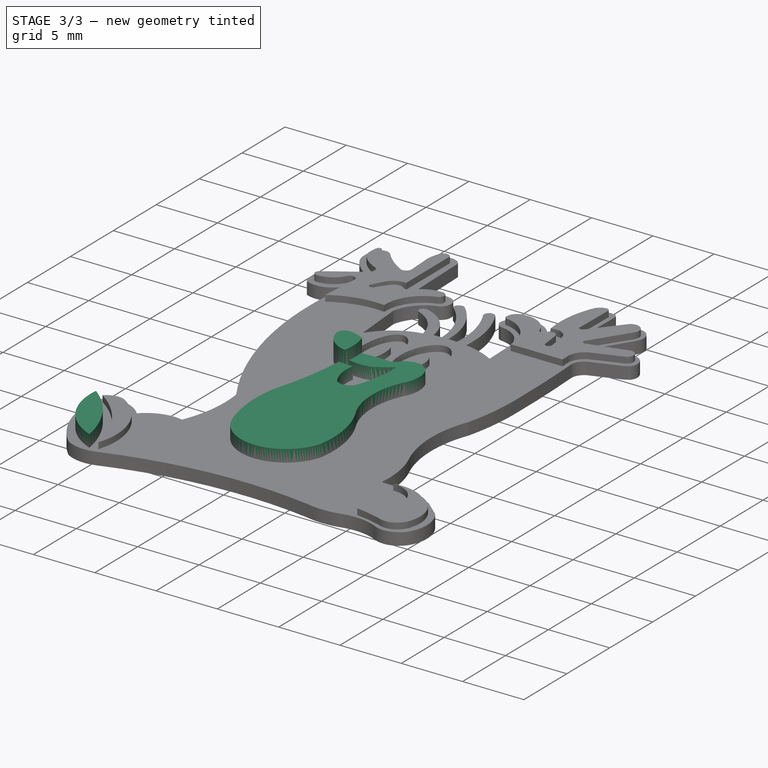
[diagram: stage 3 of 3 — iso view after this stage's code; geometry added in this stage tinted green]
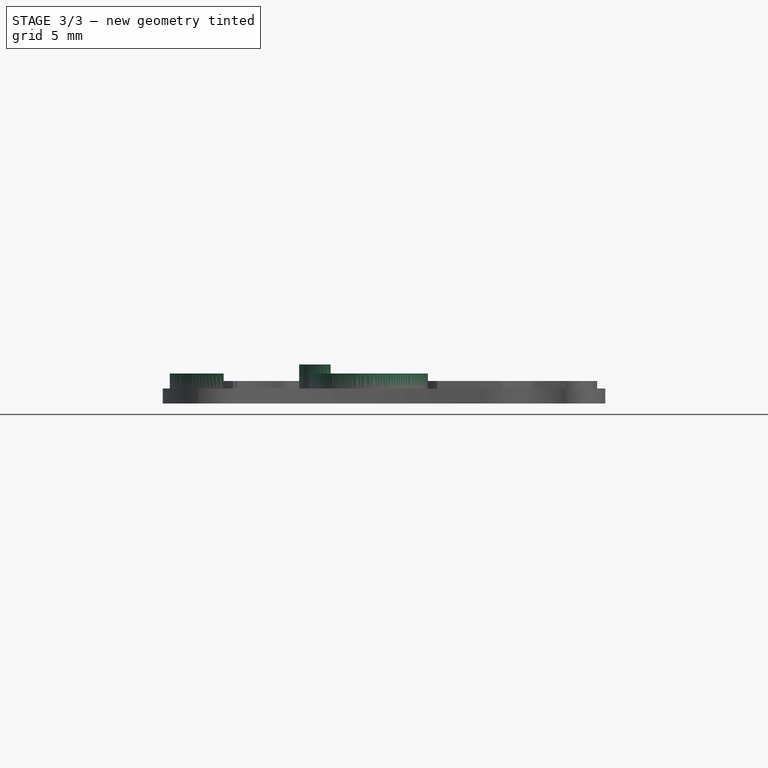
[diagram: stage 3 of 3 — front view after this stage's code; geometry added in this stage tinted green]
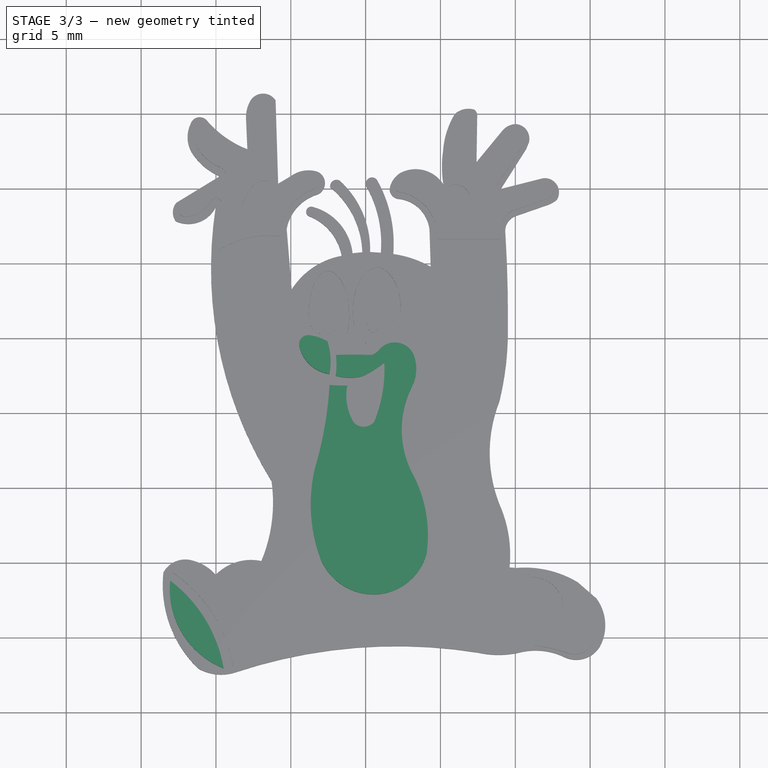
[diagram: stage 3 of 3 — top view after this stage's code; geometry added in this stage tinted green]
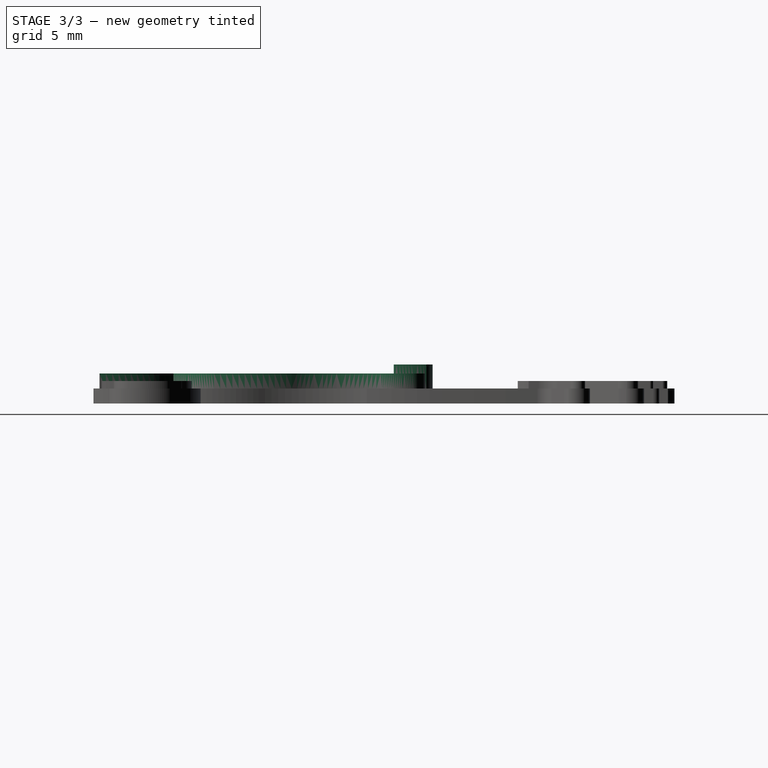
[diagram: stage 3 of 3 — right view after this stage's code; geometry added in this stage tinted green]
FEATURE [Sketcher::SketchObject] Sketch003  label="layer 3 - grey"
  FullyConstrained = false
  Placement = pos=(0,0,1) rot=(0,0,1;0rad)
  sketch-geometry (36):
    g0: ArcOfCircle CenterX=16.7196 CenterY=9.68015 CenterZ=0 NormalX=0 NormalY=0 NormalZ=1 AngleXU=0 Radius=27.0495 StartAngle=2.99055 EndAngle=3.69553
    g1: ArcOfCircle CenterX=-0.714948 CenterY=5.5906 CenterZ=0 NormalX=0 NormalY=0 NormalZ=1 AngleXU=0 Radius=5.00121 StartAngle=1.74941 EndAngle=2.57642
    g2: ArcOfCircle CenterX=-10.4904 CenterY=5.52616 CenterZ=0 NormalX=0 NormalY=0 NormalZ=1 AngleXU=0 Radius=20 StartAngle=6.04412 EndAngle=6.29937
    g3: ArcOfCircle CenterX=17.6866 CenterY=-2.64768 CenterZ=0 NormalX=0 NormalY=0 NormalZ=1 AngleXU=0 Radius=9.39727 StartAngle=2.76704 EndAngle=3.55647
    g4: ArcOfCircle CenterX=2.0903 CenterY=-49.7213 CenterZ=0 NormalX=0 NormalY=0 NormalZ=1 AngleXU=0 Radius=34.1513 StartAngle=1.41035 EndAngle=1.89195
    g5: ArcOfCircle CenterX=-9.65231 CenterY=-14.3993 CenterZ=0 NormalX=0 NormalY=0 NormalZ=1 AngleXU=0 Radius=3.07151 StartAngle=4.1832 EndAngle=5.03105
    g6: ArcOfCircle CenterX=-5.78859 CenterY=-11.4795 CenterZ=0 NormalX=0 NormalY=0 NormalZ=1 AngleXU=0 Radius=7.76869 StartAngle=3.03295 EndAngle=3.94127
    g7: ArcOfCircle CenterX=-12.0439 CenterY=-11.4613 CenterZ=0 NormalX=0 NormalY=0 NormalZ=1 AngleXU=0 Radius=1.6832 StartAngle=1.2179 EndAngle=2.62992
    g8: ArcOfCircle CenterX=-12.2834 CenterY=-12.7644 CenterZ=0 NormalX=0 NormalY=0 NormalZ=1 AngleXU=0 Radius=2.99735 StartAngle=0.713592 EndAngle=1.29324
    g9: ArcOfCircle CenterX=-7.65812 CenterY=-13.1057 CenterZ=0 NormalX=0 NormalY=0 NormalZ=1 AngleXU=0 Radius=3.29711 StartAngle=1.35983 EndAngle=2.36821
    g10: LineSegment StartX=-5.27609 StartY=12.316 StartZ=0 EndX=-4.93844 EndY=8.26908 EndZ=0
    g11: ArcOfCircle CenterX=-80.6137 CenterY=6.48156 CenterZ=0 NormalX=0 NormalY=0 NormalZ=1 AngleXU=0 Radius=90.1229 StartAngle=6.27618 EndAngle=6.3466
    g12: ArcOfCircle CenterX=-16.3435 CenterY=-5.97104 CenterZ=0 NormalX=0 NormalY=0 NormalZ=1 AngleXU=0 Radius=10.1587 StartAngle=5.88802 EndAngle=6.42363
    g13: ArcOfCircle CenterX=-18.6752 CenterY=-18.6487 CenterZ=0 NormalX=0 NormalY=0 NormalZ=1 AngleXU=0 Radius=9.32271 StartAngle=0.170286 EndAngle=0.924297
    g14: ArcOfCircle CenterX=-7.382 CenterY=-11.7668 CenterZ=0 NormalX=0 NormalY=0 NormalZ=1 AngleXU=0 Radius=5.70474 StartAngle=3.04337 EndAngle=4.3344
    g15: ArcOfCircle CenterX=-6.72063 CenterY=3.43334 CenterZ=0 NormalX=0 NormalY=0 NormalZ=1 AngleXU=0 Radius=4.38158 StartAngle=6.08938 EndAngle=6.59341
    g16: ArcOfCircle CenterX=-4.04502 CenterY=2.31185 CenterZ=0 NormalX=0 NormalY=0 NormalZ=1 AngleXU=0 Radius=2.87879 StartAngle=1.02401 EndAngle=1.45346
    g17: ArcOfCircle CenterX=-3.84323 CenterY=4.58225 CenterZ=0 NormalX=0 NormalY=0 NormalZ=1 AngleXU=0 Radius=0.603923 StartAngle=1.34499 EndAngle=3.39479
    g18: ArcOfCircle CenterX=-2.05502 CenterY=5.00262 CenterZ=0 NormalX=0 NormalY=0 NormalZ=1 AngleXU=0 Radius=2.44076 StartAngle=3.378 EndAngle=4.56184
    g19: ArcOfCircle CenterX=-7.34869 CenterY=3.26052 CenterZ=0 NormalX=0 NormalY=0 NormalZ=1 AngleXU=0 Radius=5.40317 StartAngle=6.13847 EndAngle=6.39687
    g20: ArcOfCircle CenterX=-1.0527 CenterY=5.61003 CenterZ=0 NormalX=0 NormalY=0 NormalZ=1 AngleXU=0 Radius=3.26956 StartAngle=4.4178 EndAngle=4.97351
    g21: ArcOfCircle CenterX=-0.817478 CenterY=-28.8338 CenterZ=0 NormalX=0 NormalY=0 NormalZ=1 AngleXU=0 Radius=32.7279 StartAngle=1.53324 EndAngle=1.60634
    g22: ArcOfCircle CenterX=0.04426 CenterY=4.89798 CenterZ=0 NormalX=0 NormalY=0 NormalZ=1 AngleXU=0 Radius=1.09053 StartAngle=5.05564 EndAngle=5.6017
    g23: ArcOfCircle CenterX=1.95093 CenterY=3.33106 CenterZ=0 NormalX=0 NormalY=0 NormalZ=1 AngleXU=0 Radius=1.37743 StartAngle=0.450695 EndAngle=2.44861
    g24: ArcOfCircle CenterX=0.790724 CenterY=2.94773 CenterZ=0 NormalX=0 NormalY=0 NormalZ=1 AngleXU=0 Radius=2.59372 StartAngle=5.78634 EndAngle=6.67203
    g25: ArcOfCircle CenterX=8.80965 CenterY=-1.11938 CenterZ=0 NormalX=0 NormalY=0 NormalZ=1 AngleXU=0 Radius=6.39902 StartAngle=2.68334 EndAngle=3.58551
    g26: ArcOfCircle CenterX=-2.98167 CenterY=8.47025 CenterZ=0 NormalX=0 NormalY=0 NormalZ=1 AngleXU=0 Radius=6.62703 StartAngle=5.14412 EndAngle=5.40522
    g27: ArcOfCircle CenterX=-8.11304 CenterY=2.92332 CenterZ=0 NormalX=0 NormalY=0 NormalZ=1 AngleXU=0 Radius=9.3749 StartAngle=5.89696 EndAngle=6.33097
    g28: ArcOfCircle CenterX=-0.127123 CenterY=0.000880586 CenterZ=0 NormalX=0 NormalY=0 NormalZ=1 AngleXU=0 Radius=0.926659 StartAngle=3.91758 EndAngle=5.566
    g29: ArcOfCircle CenterX=2.23942 CenterY=1.16786 CenterZ=0 NormalX=0 NormalY=0 NormalZ=1 AngleXU=0 Radius=3.53077 StartAngle=2.95253 EndAngle=3.68184
    g30: ArcOfCircle CenterX=-1.56656 CenterY=9.27842 CenterZ=0 NormalX=0 NormalY=0 NormalZ=1 AngleXU=0 Radius=7.45468 StartAngle=4.59924 EndAngle=4.75776
    g31: ArcOfCircle CenterX=-26.8228 CenterY=3.28449 CenterZ=0 NormalX=0 NormalY=0 NormalZ=1 AngleXU=0 Radius=24.4554 StartAngle=5.99035 EndAngle=6.22537
    g32: ArcOfCircle CenterX=6.81348 CenterY=-6.09423 CenterZ=0 NormalX=0 NormalY=0 NormalZ=1 AngleXU=0 Radius=10.4817 StartAngle=2.91849 EndAngle=3.49827
    g33: ArcOfCircle CenterX=0.544382 CenterY=-8.29063 CenterZ=0 NormalX=0 NormalY=0 NormalZ=1 AngleXU=0 Radius=3.84253 StartAngle=3.53232 EndAngle=4.81312
    g34: ArcOfCircle CenterX=0.501663 CenterY=-8.43932 CenterZ=0 NormalX=0 NormalY=0 NormalZ=1 AngleXU=0 Radius=3.69934 StartAngle=4.82865 EndAngle=6.01652
    g35: ArcOfCircle CenterX=-4.54801 CenterY=-8.15853 CenterZ=0 NormalX=0 NormalY=0 NormalZ=1 AngleXU=0 Radius=8.70925 StartAngle=6.13851 EndAngle=6.79836
  constraints (33):
    c: Coincident(g3,g2)
    c: Coincident(g5,g4)
    c: Coincident(g6,g5)
    c: Coincident(g7,g6)
    c: Coincident(g8,g7)
    c: Coincident(g9,g8)
    c: Coincident(g10,g1)
    c: Coincident(g11,g2)
    c: Coincident(g12,g9)
    c: Coincident(g12,g0)
    c: Coincident(g14,g13)
    c: Coincident(g14,g13)
    c: Coincident(g16,g15)
    c: Coincident(g17,g16)
    c: Coincident(g18,g17)
    c: Coincident(g18,g15)
    c: Coincident(g20,g19)
    c: Coincident(g21,g19)
    c: Coincident(g22,g21)
    c: Coincident(g23,g22)
    c: Coincident(g24,g23)
    c: Coincident(g25,g24)
    c: Coincident(g26,g20)
    c: Coincident(g27,g26)
    c: Coincident(g28,g27)
    c: Coincident(g29,g28)
    c: Coincident(g30,g29)
    c: Coincident(g31,g30)
    c: Coincident(g32,g31)
    c: Coincident(g33,g32)
    c: Coincident(g34,g33)
    c: Coincident(g35,g34)
    c: Coincident(g35,g25)
FEATURE [PartDesign::Pad] Pad002
  BaseFeature = -> Pad001
  Direction = (1,1,1)
  Length = 0.5
  Length2 = 100
  Profile = -> Sketch003
  Refine = true
  Type = 0
FEATURE [Sketcher::SketchObject] Sketch004  label="layer 3 - red"
  FullyConstrained = false
  Placement = pos=(0,0,1.5) rot=(0,0,1;0rad)
  sketch-geometry (7):
    g0: ArcOfCircle CenterX=-0.714948 CenterY=5.5906 CenterZ=0 NormalX=0 NormalY=0 NormalZ=1 AngleXU=0 Radius=5.00121 StartAngle=1.74941 EndAngle=2.57642
    g1: LineSegment StartX=-5.27609 StartY=12.316 StartZ=0 EndX=-4.93844 EndY=8.26908 EndZ=0
    g2: ArcOfCircle CenterX=-80.6137 CenterY=6.48156 CenterZ=0 NormalX=0 NormalY=0 NormalZ=1 AngleXU=0 Radius=90.1229 StartAngle=6.27618 EndAngle=6.3466
    g3: ArcOfCircle CenterX=-6.72063 CenterY=3.43334 CenterZ=0 NormalX=0 NormalY=0 NormalZ=1 AngleXU=0 Radius=4.38158 StartAngle=6.08938 EndAngle=6.59341
    g4: ArcOfCircle CenterX=-4.04502 CenterY=2.31185 CenterZ=0 NormalX=0 NormalY=0 NormalZ=1 AngleXU=0 Radius=2.87879 StartAngle=1.02401 EndAngle=1.45346
    g5: ArcOfCircle CenterX=-3.84323 CenterY=4.58225 CenterZ=0 NormalX=0 NormalY=0 NormalZ=1 AngleXU=0 Radius=0.603923 StartAngle=1.34499 EndAngle=3.39479
    g6: ArcOfCircle CenterX=-2.05502 CenterY=5.00262 CenterZ=0 NormalX=0 NormalY=0 NormalZ=1 AngleXU=0 Radius=2.44076 StartAngle=3.378 EndAngle=4.56184
  constraints (5):
    c: Coincident(g1,g0)
    c: Coincident(g4,g3)
    c: Coincident(g5,g4)
    c: Coincident(g6,g5)
    c: Coincident(g6,g3)
FEATURE [PartDesign::Pad] Pad003
  BaseFeature = -> Pad002
  Direction = (1,1,1)
  Length = 0.6
  Length2 = 100
  Profile = -> Sketch004
  Refine = true
  Type = 0
FEATURE [PartDesign::Body] Body
  Group = -> [Sketch,Sketch001,Pad,Pocket,Sketch002,Pad001,Sketch003,Pad002,Sketch004,Pad003]
  Origin = -> Origin
  Tip = -> Pad003
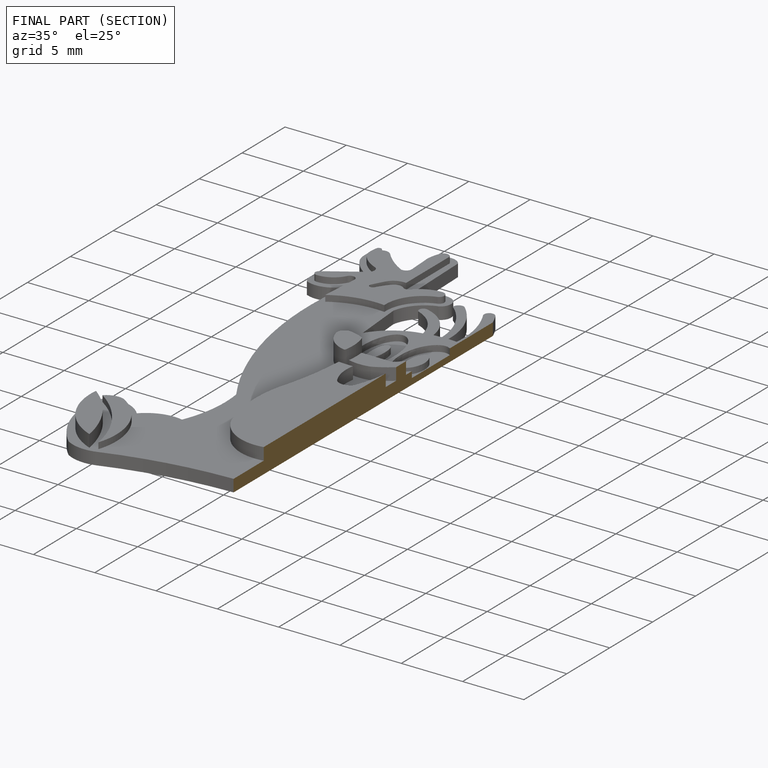
[diagram: finished part — half-section view (interior)]
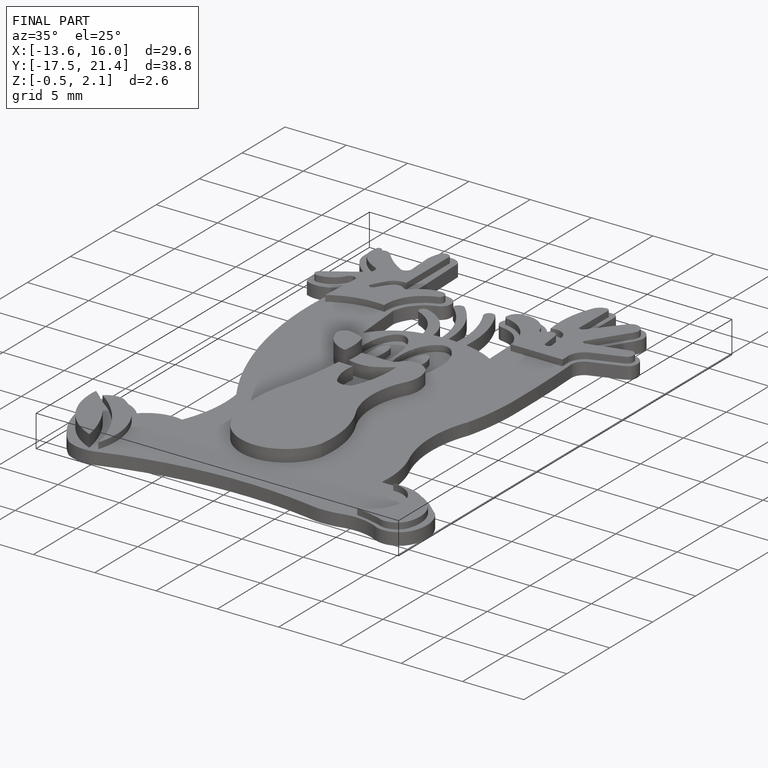
[diagram: finished part — iso view with bounding-box wireframe]
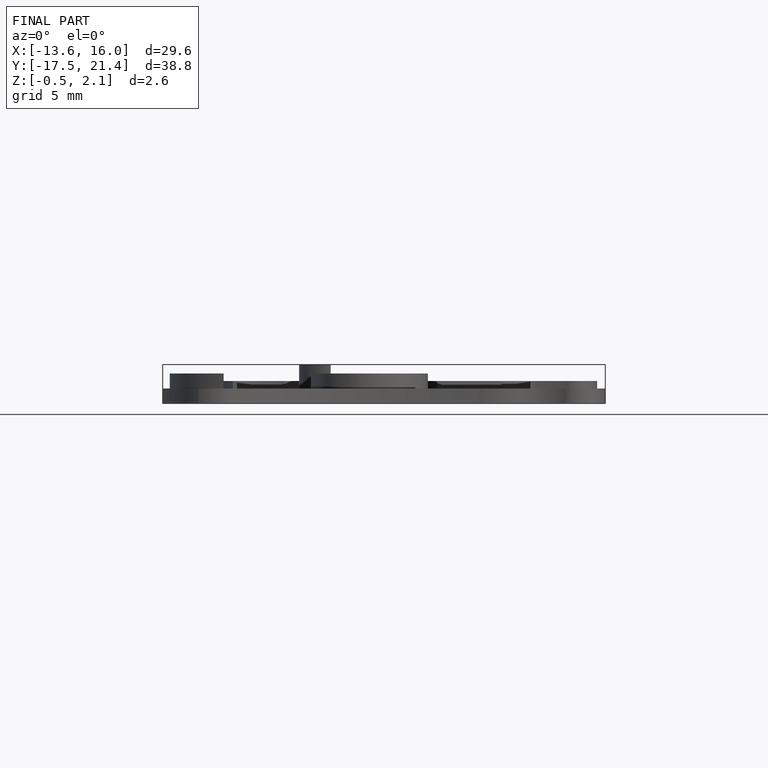
[diagram: finished part — front view with bounding-box wireframe]
